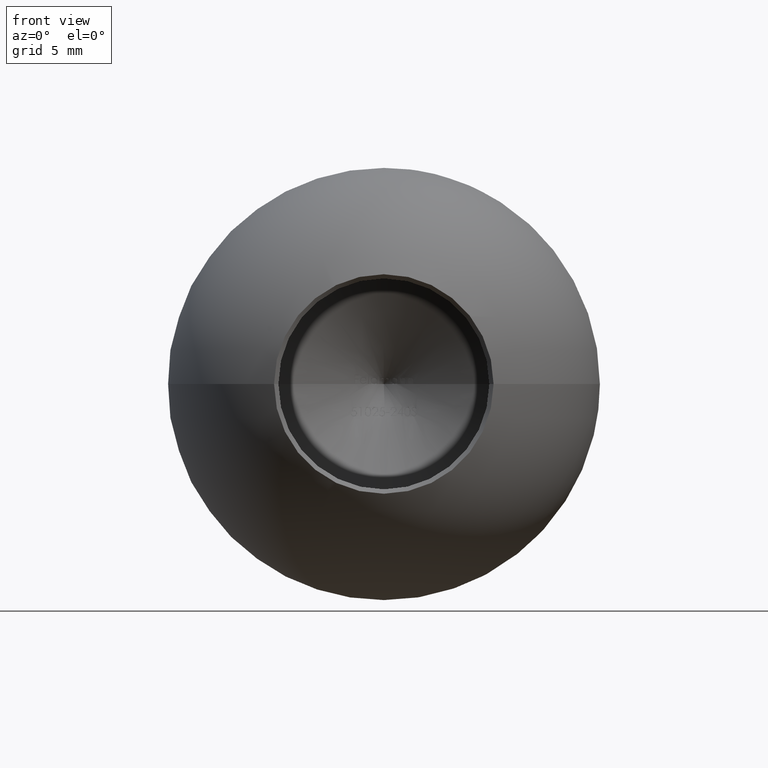
[diagram: clean part render]
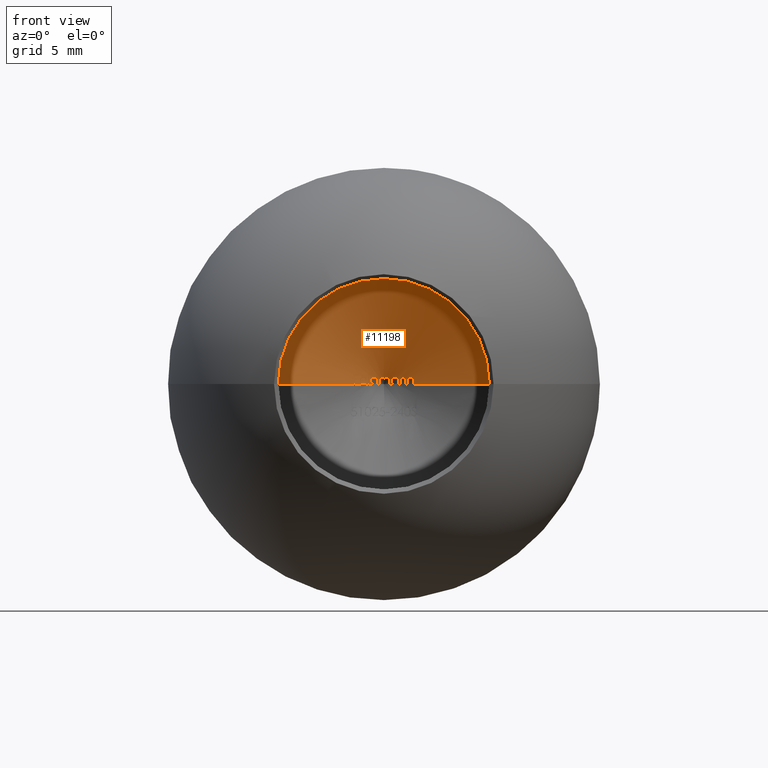
[diagram: same view with one face highlighted and labeled with its STEP entity id]
A machine part, front view. The second image highlights one B-rep face of the part: STEP entity #11198.
In plain terms, the highlighted conical surface has half-angle 59 deg.
Its self-contained STEP definition (entity closure, byte-faithful):
#1 = B_SPLINE_CURVE_WITH_KNOTS ( 'NONE', 3,
 ( #9406, #6652, #11409, #3731, #1846, #10343 ),
 .UNSPECIFIED., .F., .F.,
 ( 4, 2, 4 ),
 ( 0.0000000000000000000, 9.478947945274226800E-005, 0.0001895789589054845400 ),
 .UNSPECIFIED. ) ;
#11 = CARTESIAN_POINT ( 'NONE',  ( -1.339877136752137800, 6.585718645836701400, 0.1831730769230783800 ) ) ;
#38 = CARTESIAN_POINT ( 'NONE',  ( -0.2001335470085484600, 7.171761865918005800, 0.3194928552350442300 ) ) ;
#48 = CARTESIAN_POINT ( 'NONE',  ( -1.322011995031400000, 6.603924338640515800, 0.03412153390940569900 ) ) ;
#59 = EDGE_CURVE ( 'NONE', #5462, #2048, #7190, .T. ) ;
#72 = CARTESIAN_POINT ( 'NONE',  ( -1.665518162393163000, 6.357656490030636000, 0.4748931623931638700 ) ) ;
#91 = CARTESIAN_POINT ( 'NONE',  ( -1.286778537504764200, 6.625111867266441300, 0.009729627450627087100 ) ) ;
#95 = CARTESIAN_POINT ( 'NONE',  ( -1.339089859469132300, 6.587588473182241200, 0.1659570519032325900 ) ) ;
#103 = CARTESIAN_POINT ( 'NONE',  ( -0.3561698717948730800, 7.184277966217322000, 1.500192328955508100E-015 ) ) ;
#110 = CARTESIAN_POINT ( 'NONE',  ( -0.9056891025641035100, 6.854093501049775700, 1.500192328955508100E-015 ) ) ;
#131 = CARTESIAN_POINT ( 'NONE',  ( -1.525415545125976300, 6.438423718284985500, 0.4748931623931638700 ) ) ;
#132 = CARTESIAN_POINT ( 'NONE',  ( 1.278748215002679900, 6.618611074860959700, 0.2216624680569211900 ) ) ;
#133 = CARTESIAN_POINT ( 'NONE',  ( -1.316873170836190900, 6.604692294988399900, 0.1019429019743078200 ) ) ;
#141 = CARTESIAN_POINT ( 'NONE',  ( -0.7632211538461550800, 6.925053253679052100, 0.1944093883547023400 ) ) ;
#161 = B_SPLINE_CURVE_WITH_KNOTS ( 'NONE', 3,
 ( #5937, #3861, #189, #9086, #5105, #2333 ),
 .UNSPECIFIED., .F., .F.,
 ( 4, 2, 4 ),
 ( 0.0000000000000000000, 0.0001050706478123604600, 0.0002101412956247210000 ),
 .UNSPECIFIED. ) ;
#189 = CARTESIAN_POINT ( 'NONE',  ( -0.4974798504800669900, 7.019723047697930000, 0.3866342090348231500 ) ) ;
#218 = CARTESIAN_POINT ( 'NONE',  ( -0.7445456928866451800, 6.946667929197361400, 0.1047826798471500500 ) ) ;
#219 = CARTESIAN_POINT ( 'NONE',  ( 1.726575854700853400, 6.360854979009367600, 1.500192328955508100E-015 ) ) ;
#243 = CARTESIAN_POINT ( 'NONE',  ( 1.387366452991451800, 6.564672550100445900, 1.500192328955508100E-015 ) ) ;
#261 = CARTESIAN_POINT ( 'NONE',  ( -0.6548595648391192200, 7.004807092357610900, 0.01033408935832822100 ) ) ;
#292 = CARTESIAN_POINT ( 'NONE',  ( -1.936584698584708900E-018, 7.398286415862954400, 0.0000000000000000000 ) ) ;
#301 = EDGE_CURVE ( 'NONE', #4851, #7272, #7338, .T. ) ;
#317 = CARTESIAN_POINT ( 'NONE',  ( -0.03522397244553379000, 7.162720029132172400, 0.3907181555876257400 ) ) ;
#340 = CARTESIAN_POINT ( 'NONE',  ( -0.4036591880341893800, 6.991870908226687200, 0.5427350427350441400 ) ) ;
#359 = EDGE_CURVE ( 'NONE', #2409, #3584, #2316, .T. ) ;
#402 = EDGE_CURVE ( 'NONE', #6707, #11407, #5255, .T. ) ;
#419 = CARTESIAN_POINT ( 'NONE',  ( 0.1665018309098093000, 7.142794062606728100, 0.3922337965753890900 ) ) ;
#434 = CARTESIAN_POINT ( 'NONE',  ( -0.9938835470085479700, 6.791043439216088600, 0.1831730769230783800 ) ) ;
#453 = CARTESIAN_POINT ( 'NONE',  ( -1.014236111111112000, 6.785919220991226000, 0.09996077056624080900 ) ) ;
#499 = CARTESIAN_POINT ( 'NONE',  ( -1.135927483978445000, 6.715752324675432500, -8.256864477060550500E-013 ) ) ;
#532 = EDGE_CURVE ( 'NONE', #1014, #5419, #7846, .T. ) ;
#541 = CARTESIAN_POINT ( 'NONE',  ( -0.9056891025641035100, 6.763863504561936900, 0.5427350427350441400 ) ) ;
#546 = ORIENTED_EDGE ( 'NONE', *, *, #5471, .T. ) ;
#560 = CARTESIAN_POINT ( 'NONE',  ( -1.387366452991454000, 6.556703765438391500, 0.1922893295940185700 ) ) ;
#588 = CARTESIAN_POINT ( 'NONE',  ( 0.8310630341878052500, 6.847522460934470700, 0.3866987179487194100 ) ) ;
#597 = CARTESIAN_POINT ( 'NONE',  ( -1.014236111111112000, 6.785919220991226000, 0.09996077056624080900 ) ) ;
#609 = CARTESIAN_POINT ( 'NONE',  ( 1.726575854700853400, 6.354090940015741900, 0.1974834735576937700 ) ) ;
#625 = CARTESIAN_POINT ( 'NONE',  ( -0.7579895014815102300, 6.919163143210921500, 0.2490537826473115400 ) ) ;
#632 = B_SPLINE_CURVE_WITH_KNOTS ( 'NONE', 3,
 ( #12148, #3554, #625, #10198, #4530, #5501, #12226, #5420, #6469, #10351 ),
 .UNSPECIFIED., .F., .F.,
 ( 4, 2, 2, 2, 4 ),
 ( 0.0000000000000000000, 8.155571166221291200E-005, 0.0001631114233244258200, 0.0002446671349866387400, 0.0003262228466488516500 ),
 .UNSPECIFIED. ) ;
#639 = ORIENTED_EDGE ( 'NONE', *, *, #709, .T. ) ;
#666 = ORIENTED_EDGE ( 'NONE', *, *, #7869, .T. ) ;
#709 = EDGE_CURVE ( 'NONE', #1341, #3988, #4331, .T. ) ;
#734 = CARTESIAN_POINT ( 'NONE',  ( -1.035966713408120700, 6.747259404961123900, 0.3173727964743604500 ) ) ;
#736 = CARTESIAN_POINT ( 'NONE',  ( 0.3290331196581181000, 7.163922241602343800, 0.2094618055555570200 ) ) ;
#750 = EDGE_CURVE ( 'NONE', #5419, #5113, #1319, .T. ) ;
#760 = CARTESIAN_POINT ( 'NONE',  ( 0.9870993589743569700, 6.766367003783075000, 0.3635288229497706200 ) ) ;
#761 = VERTEX_POINT ( 'NONE', #5040 ) ;
#801 = VERTEX_POINT ( 'NONE', #8029 ) ;
#805 = CARTESIAN_POINT ( 'NONE',  ( -0.2476228632478647000, 7.122378847666433400, 0.3866987179487192900 ) ) ;
#823 = DIRECTION ( 'NONE',  ( -0.8571673007021136700, -0.5150380749100517100, 1.049727191138620400E-016 ) ) ;
#826 = CARTESIAN_POINT ( 'NONE',  ( -1.936584698584708900E-018, 7.398286415862954400, 0.0000000000000000000 ) ) ;
#834 = B_SPLINE_CURVE_WITH_KNOTS ( 'NONE', 3,
 ( #10588, #131, #4836, #5806 ),
 .UNSPECIFIED., .F., .F.,
 ( 4, 4 ),
 ( 0.0007487562567123391600, 0.0009913007770317636700 ),
 .UNSPECIFIED. ) ;
#957 = CARTESIAN_POINT ( 'NONE',  ( -1.383672564581590600, 6.554662816931302600, 0.2392944843563435400 ) ) ;
#965 = CARTESIAN_POINT ( 'NONE',  ( 0.4681744587720971800, 7.057391238730264000, 0.3204797308144003400 ) ) ;
#967 = CARTESIAN_POINT ( 'NONE',  ( -1.244739828179915600, 6.649847110737218800, 0.04667709270721038400 ) ) ;
#993 = CARTESIAN_POINT ( 'NONE',  ( -0.9938835470085479700, 6.791043439216088600, 0.1831730769230783800 ) ) ;
#996 = EDGE_CURVE ( 'NONE', #1014, #9906, #11989, .T. ) ;
#1001 = CARTESIAN_POINT ( 'NONE',  ( 0.5743681984322206400, 6.981514231364338100, 0.3889075040730031200 ) ) ;
#1013 = CARTESIAN_POINT ( 'NONE',  ( 0.9870993589743569700, 6.775352539716305200, 0.3169487847222237100 ) ) ;
#1014 = VERTEX_POINT ( 'NONE', #11428 ) ;
#1029 = VECTOR ( 'NONE', #9870, 1000.000000000000000 ) ;
#1034 = CARTESIAN_POINT ( 'NONE',  ( -1.713007478632479200, 6.369007681853009500, 1.500192328955508100E-015 ) ) ;
#1038 = EDGE_CURVE ( 'NONE', #6957, #1341, #9929, .T. ) ;
#1043 = CARTESIAN_POINT ( 'NONE',  ( 1.134231436965809700, 6.676925840417423400, 0.3934829059829074700 ) ) ;
#1070 = CARTESIAN_POINT ( 'NONE',  ( -1.455208333333333900, 6.510294168091587800, 0.2577991452991468300 ) ) ;
#1073 = ORIENTED_EDGE ( 'NONE', *, *, #12274, .T. ) ;
#1083 = CARTESIAN_POINT ( 'NONE',  ( -1.219117226891513100, 6.665340063689570500, 0.04165419064811912200 ) ) ;
#1090 = EDGE_CURVE ( 'NONE', #5721, #7342, #6168, .T. ) ;
#1098 = VERTEX_POINT ( 'NONE', #72 ) ;
#1109 = EDGE_CURVE ( 'NONE', #1902, #4851, #5085, .T. ) ;
#1115 = CARTESIAN_POINT ( 'NONE',  ( 0.8152512996039360500, 6.856136274202364200, 0.3866987179487194100 ) ) ;
#1151 = CARTESIAN_POINT ( 'NONE',  ( -0.1464960603632493300, 7.157011405448623800, 0.3738723624465826700 ) ) ;
#1154 = CARTESIAN_POINT ( 'NONE',  ( -0.3879110842113436300, 6.997517941183385700, 0.5427350427350441400 ) ) ;
#1171 = VERTEX_POINT ( 'NONE', #9889 ) ;
#1204 = CARTESIAN_POINT ( 'NONE',  ( 1.717918690679695000, 6.351118546125890800, 0.2943356654103199700 ) ) ;
#1219 = CARTESIAN_POINT ( 'NONE',  ( -0.7625839456207317300, 6.928925671282955900, 0.1708018247460700300 ) ) ;
#1254 = CARTESIAN_POINT ( 'NONE',  ( -0.3720618090708280900, 7.002988262054384600, 0.5427350427350441400 ) ) ;
#1256 = CARTESIAN_POINT ( 'NONE',  ( 1.710145773918358500, 6.353151277308385600, 0.3183697774840302800 ) ) ;
#1274 = EDGE_CURVE ( 'NONE', #7380, #5154, #632, .T. ) ;
#1290 = CARTESIAN_POINT ( 'NONE',  ( 0.1981194911858959500, 7.133580115515504100, 0.3934829059829074700 ) ) ;
#1309 = EDGE_CURVE ( 'NONE', #9395, #8101, #9000, .T. ) ;
#1319 = B_SPLINE_CURVE_WITH_KNOTS ( 'NONE', 3,
 ( #6891, #6934, #8798, #3058 ),
 .UNSPECIFIED., .F., .F.,
 ( 4, 4 ),
 ( 0.001806058992281601200, 0.002102759371083254000 ),
 .UNSPECIFIED. ) ;
#1320 = CARTESIAN_POINT ( 'NONE',  ( 1.005612657392077200, 6.760504594219315600, 0.3401211589749970600 ) ) ;
#1325 = CARTESIAN_POINT ( 'NONE',  ( 0.05628756009615237100, 7.214827138706767500, 0.3000943175747878300 ) ) ;
#1341 = VERTEX_POINT ( 'NONE', #12340 ) ;
#1397 = EDGE_CURVE ( 'NONE', #2486, #1703, #10106, .T. ) ;
#1441 = CIRCLE ( 'NONE', #2397, 6.100000000000001400 ) ;
#1482 = CARTESIAN_POINT ( 'NONE',  ( -0.3561698717948730800, 7.184277966217329900, 0.09575507470551500300 ) ) ;
#1484 = CARTESIAN_POINT ( 'NONE',  ( 0.8310630341880327300, 6.879416679111294300, 0.2608765231388721600 ) ) ;
#1489 = CARTESIAN_POINT ( 'NONE',  ( 1.726575854700853400, 6.358568016074636700, 0.1319145520317594500 ) ) ;
#1519 = B_SPLINE_CURVE_WITH_KNOTS ( 'NONE', 3,
 ( #6329, #7296, #9438, #10305 ),
 .UNSPECIFIED., .F., .F.,
 ( 4, 4 ),
 ( 0.001608667936522824200, 0.001994531731372896200 ),
 .UNSPECIFIED. ) ;
#1538 = CARTESIAN_POINT ( 'NONE',  ( 1.434855769230768000, 6.509012168130794000, 0.3634494040485558600 ) ) ;
#1546 = EDGE_CURVE ( 'NONE', #2142, #1171, #4889, .T. ) ;
#1606 = CARTESIAN_POINT ( 'NONE',  ( -1.595458700704719000, 6.421502265953668200, 0.3120726495726510700 ) ) ;
#1625 = EDGE_CURVE ( 'NONE', #2941, #8684, #8604, .T. ) ;
#1661 = EDGE_CURVE ( 'NONE', #2142, #8082, #10693, .T. ) ;
#1703 = VERTEX_POINT ( 'NONE', #8807 ) ;
#1742 = EDGE_CURVE ( 'NONE', #12085, #1098, #834, .T. ) ;
#1789 = ORIENTED_EDGE ( 'NONE', *, *, #12021, .T. ) ;
#1790 = VECTOR ( 'NONE', #4992, 1000.000000000000000 ) ;
#1846 = CARTESIAN_POINT ( 'NONE',  ( -1.073752915113377300, 6.750728639161263100, 0.09637610866972561000 ) ) ;
#1861 = CARTESIAN_POINT ( 'NONE',  ( -0.5601195245726509100, 6.986987478013986700, 0.3934829059829074700 ) ) ;
#1867 = EDGE_CURVE ( 'NONE', #7572, #2048, #8322, .T. ) ;
#1891 = B_SPLINE_CURVE_WITH_KNOTS ( 'NONE', 3,
 ( #10040, #9195, #6180, #597 ),
 .UNSPECIFIED., .F., .F.,
 ( 4, 4 ),
 ( 2.589674448291843100E-007, 5.484452315193692400E-005 ),
 .UNSPECIFIED. ) ;
#1902 = VERTEX_POINT ( 'NONE', #541 ) ;
#1922 = CARTESIAN_POINT ( 'NONE',  ( -1.342845219017095000, 6.568634786242006900, 0.3214009081196596000 ) ) ;
#1932 = CARTESIAN_POINT ( 'NONE',  ( 0.4299054499318520400, 7.099276709664892800, 0.2510754663132674400 ) ) ;
#1933 = CARTESIAN_POINT ( 'NONE',  ( -1.229109325351599200, 6.659298245000090200, 0.04361298208248165500 ) ) ;
#1959 = ORIENTED_EDGE ( 'NONE', *, *, #6871, .T. ) ;
#1966 = ORIENTED_EDGE ( 'NONE', *, *, #10131, .T. ) ;
#1973 = CARTESIAN_POINT ( 'NONE',  ( -1.455208333333333900, 6.475153099272774600, 0.4929926354261307000 ) ) ;
#1976 = VERTEX_POINT ( 'NONE', #5494 ) ;
#2003 = CARTESIAN_POINT ( 'NONE',  ( 0.08779943702463703600, 7.182566655175205200, 0.3485925733421035300 ) ) ;
#2007 = B_SPLINE_CURVE_WITH_KNOTS ( 'NONE', 3,
 ( #9373, #2770, #1115, #7107 ),
 .UNSPECIFIED., .F., .F.,
 ( 4, 4 ),
 ( 0.0004564707604004478500, 0.0005104524866794638700 ),
 .UNSPECIFIED. ) ;
#2016 = CARTESIAN_POINT ( 'NONE',  ( -1.191685029380342900, 6.644226206773288900, 0.3934829059829074700 ) ) ;
#2038 = CARTESIAN_POINT ( 'NONE',  ( -0.8740519313173519300, 6.780113162964460600, 0.5427350427350441400 ) ) ;
#2048 = VERTEX_POINT ( 'NONE', #8965 ) ;
#2051 = EDGE_CURVE ( 'NONE', #7243, #7508, #9079, .T. ) ;
#2057 = B_SPLINE_CURVE_WITH_KNOTS ( 'NONE', 3,
 ( #11, #95, #3989, #10714, #3024, #133, #10548, #6730, #9571, #6860, #3853, #967, #1933, #1083, #8601, #8640 ),
 .UNSPECIFIED., .F., .F.,
 ( 4, 3, 3, 3, 3, 4 ),
 ( 0.0000000000000000000, 5.200546313376849900E-005, 0.0001044816825349840900, 0.0001518414543448104400, 0.0002073250983754808700, 0.0002424756323301273900 ),
 .UNSPECIFIED. ) ;
#2058 = CARTESIAN_POINT ( 'NONE',  ( -1.455208333333333900, 6.471606403678408400, 0.5110837011094711000 ) ) ;
#2083 = VERTEX_POINT ( 'NONE', #2564 ) ;
#2091 = ORIENTED_EDGE ( 'NONE', *, *, #3047, .T. ) ;
#2107 = ORIENTED_EDGE ( 'NONE', *, *, #402, .T. ) ;
#2141 = CARTESIAN_POINT ( 'NONE',  ( 1.176492429003841400, 6.653669747060445300, 0.3896581515268290300 ) ) ;
#2142 = VERTEX_POINT ( 'NONE', #3635 ) ;
#2144 = CARTESIAN_POINT ( 'NONE',  ( -0.7596531396830434900, 6.933449874742991300, 0.1476746256332041300 ) ) ;
#2169 = CARTESIAN_POINT ( 'NONE',  ( -0.2476228632478647000, 7.249499588966466800, 1.500192328955508100E-015 ) ) ;
#2197 = CARTESIAN_POINT ( 'NONE',  ( 0.9870993589743569700, 6.761288842363845800, 0.3866987179487194100 ) ) ;
#2225 = EDGE_CURVE ( 'NONE', #7342, #4173, #10009, .T. ) ;
#2285 = ORIENTED_EDGE ( 'NONE', *, *, #1038, .T. ) ;
#2287 = CARTESIAN_POINT ( 'NONE',  ( -0.05112407260770863300, 7.160365999415348300, 0.3929516778922428300 ) ) ;
#2316 = B_SPLINE_CURVE_WITH_KNOTS ( 'NONE', 3,
 ( #609, #1489, #3372, #10184 ),
 .UNSPECIFIED., .F., .F.,
 ( 4, 4 ),
 ( 0.001118325528164309500, 0.001313442525816564700 ),
 .UNSPECIFIED. ) ;
#2333 = CARTESIAN_POINT ( 'NONE',  ( -0.4036591880341893800, 7.091789892953755700, 0.3118606436965827300 ) ) ;
#2345 = VECTOR ( 'NONE', #11433, 1000.000000000000000 ) ;
#2369 = ORIENTED_EDGE ( 'NONE', *, *, #6393, .T. ) ;
#2374 = VERTEX_POINT ( 'NONE', #11850 ) ;
#2397 = AXIS2_PLACEMENT_3D ( 'NONE', #8650, #2922, #4888 ) ;
#2409 = VERTEX_POINT ( 'NONE', #11981 ) ;
#2460 = CARTESIAN_POINT ( 'NONE',  ( 0.8310630341880327300, 6.898933366689814100, 1.500192328955508100E-015 ) ) ;
#2486 = VERTEX_POINT ( 'NONE', #11141 ) ;
#2488 = EDGE_CURVE ( 'NONE', #2556, #7272, #4307, .T. ) ;
#2556 = VERTEX_POINT ( 'NONE', #10749 ) ;
#2558 = CARTESIAN_POINT ( 'NONE',  ( -1.055599559354143800, 6.731720509021737800, 0.3415754201716722500 ) ) ;
#2564 = CARTESIAN_POINT ( 'NONE',  ( -1.665518162393163000, 6.385624808247485800, 0.2577991452991468300 ) ) ;
#2587 = CARTESIAN_POINT ( 'NONE',  ( 0.9870993589743569700, 6.771076181808828300, 0.3402285942473590700 ) ) ;
#2593 = ORIENTED_EDGE ( 'NONE', *, *, #6580, .T. ) ;
#2649 = EDGE_CURVE ( 'NONE', #2374, #2688, #6479, .T. ) ;
#2661 = CARTESIAN_POINT ( 'NONE',  ( 1.581987847222220900, 6.418770381382526800, 0.3934829059829074700 ) ) ;
#2664 = EDGE_CURVE ( 'NONE', #11367, #9514, #4764, .T. ) ;
#2669 = CARTESIAN_POINT ( 'NONE',  ( -1.455208333333333900, 6.508398707406576600, 0.2758831662008839900 ) ) ;
#2688 = VERTEX_POINT ( 'NONE', #6647 ) ;
#2707 = CARTESIAN_POINT ( 'NONE',  ( -1.103179421032288100, 6.726373669342845800, 0.1831730769230783800 ) ) ;
#2721 = CARTESIAN_POINT ( 'NONE',  ( -0.2001335470085484600, 7.171761865918005800, 0.3194928552350442300 ) ) ;
#2729 = EDGE_CURVE ( 'NONE', #2556, #7380, #11104, .T. ) ;
#2730 = CARTESIAN_POINT ( 'NONE',  ( -0.2318877890185883100, 7.127477359191492400, 0.3866987179487194100 ) ) ;
#2747 = CARTESIAN_POINT ( 'NONE',  ( 0.5269113906325531000, 7.011481597319899200, 0.3698808421072865600 ) ) ;
#2770 = CARTESIAN_POINT ( 'NONE',  ( 0.7994224558616833700, 6.864715769115967700, 0.3866987179487194100 ) ) ;
#2799 = ORIENTED_EDGE ( 'NONE', *, *, #1274, .T. ) ;
#2830 = ORIENTED_EDGE ( 'NONE', *, *, #5395, .F. ) ;
#2855 = CARTESIAN_POINT ( 'NONE',  ( -1.578785132513775600, 6.437110171568797900, 0.2577991452991468300 ) ) ;
#2866 = VECTOR ( 'NONE', #10243, 1000.000000000000000 ) ;
#2870 = CARTESIAN_POINT ( 'NONE',  ( 0.9554523394504650400, 6.778965901043911800, 0.3866987179487194100 ) ) ;
#2882 = VERTEX_POINT ( 'NONE', #7091 ) ;
#2892 = CARTESIAN_POINT ( 'NONE',  ( -6.100000000000001400, 3.733036639794860000, 7.470345474798856300E-016 ) ) ;
#2922 = DIRECTION ( 'NONE',  ( -3.795949471969979100E-019, -1.000000000000000000, -0.0000000000000000000 ) ) ;
#2932 = CARTESIAN_POINT ( 'NONE',  ( -0.2476228632478647000, 7.153337261164004700, 0.3255169396350683400 ) ) ;
#2941 = VERTEX_POINT ( 'NONE', #1325 ) ;
#2945 = CARTESIAN_POINT ( 'NONE',  ( -1.356485598362129600, 6.563225679577753300, 0.3030847161020858700 ) ) ;
#2968 = B_SPLINE_CURVE_WITH_KNOTS ( 'NONE', 3,
 ( #8989, #1320, #8045, #10806, #3248, #9970 ),
 .UNSPECIFIED., .F., .F.,
 ( 4, 2, 4 ),
 ( 0.0000000000000000000, 9.862340729945773200E-005, 0.0001972468145989154600 ),
 .UNSPECIFIED. ) ;
#2975 = CARTESIAN_POINT ( 'NONE',  ( -1.713007478632479200, 6.369007681853009500, 0.1764582975970517300 ) ) ;
#2976 = CARTESIAN_POINT ( 'NONE',  ( -1.368528184240388200, 6.558703418570108700, 0.2830268074333313100 ) ) ;
#3020 = CARTESIAN_POINT ( 'NONE',  ( -1.383794421931995300, 6.562239438052860600, 0.1468272505587847100 ) ) ;
#3021 = DIRECTION ( 'NONE',  ( 0.8571673007021136700, -0.5150380749100517100, 0.0000000000000000000 ) ) ;
#3024 = CARTESIAN_POINT ( 'NONE',  ( -1.325523987704854100, 6.598803908221692700, 0.1166909536807704100 ) ) ;
#3047 = EDGE_CURVE ( 'NONE', #8101, #12360, #9606, .T. ) ;
#3053 = CARTESIAN_POINT ( 'NONE',  ( -0.1721437568219758000, 7.162082807791110300, 0.3534654816710283100 ) ) ;
#3058 = CARTESIAN_POINT ( 'NONE',  ( -1.455208333333333900, 6.467893248463349600, 0.5291666666666681200 ) ) ;
#3108 = ORIENTED_EDGE ( 'NONE', *, *, #10687, .T. ) ;
#3146 = EDGE_CURVE ( 'NONE', #4173, #6894, #12259, .T. ) ;
#3150 = CONICAL_SURFACE ( 'NONE', #4010, 1664.279482350529000, 1.029744258676657400 ) ;
#3159 = CARTESIAN_POINT ( 'NONE',  ( -1.936584698584708900E-018, 7.398286415862954400, 0.0000000000000000000 ) ) ;
#3160 = CARTESIAN_POINT ( 'NONE',  ( -0.8581997863247873300, 6.873232542477667000, 0.1857959893372500600 ) ) ;
#3172 = CARTESIAN_POINT ( 'NONE',  ( -1.665518162393163000, 6.397542141805766700, 0.08578117235620366700 ) ) ;
#3194 = VERTEX_POINT ( 'NONE', #6971 ) ;
#3201 = ORIENTED_EDGE ( 'NONE', *, *, #12160, .T. ) ;
#3211 = CARTESIAN_POINT ( 'NONE',  ( 0.007412038615006793000, 7.174606276090383300, 0.3723769714719757900 ) ) ;
#3248 = CARTESIAN_POINT ( 'NONE',  ( 1.105319173278442400, 6.693522394811275900, 0.3925490969725742900 ) ) ;
#3251 = ORIENTED_EDGE ( 'NONE', *, *, #11441, .T. ) ;
#3292 = CARTESIAN_POINT ( 'NONE',  ( 0.02892610088501207000, 7.185161961475510700, 0.3536798658705478900 ) ) ;
#3297 = ORIENTED_EDGE ( 'NONE', *, *, #8036, .T. ) ;
#3372 = CARTESIAN_POINT ( 'NONE',  ( 1.726575854700853400, 6.360854979009370200, 0.06571722180493001800 ) ) ;
#3416 = CARTESIAN_POINT ( 'NONE',  ( -1.525361381278820900, 6.462813718242589500, 0.3120726495726510700 ) ) ;
#3465 = DIRECTION ( 'NONE',  ( -0.8571673007021136700, -0.5150380749100517100, 1.049727191138620400E-016 ) ) ;
#3487 = CARTESIAN_POINT ( 'NONE',  ( -1.936584698584708900E-018, 7.398286415862954400, 0.0000000000000000000 ) ) ;
#3554 = CARTESIAN_POINT ( 'NONE',  ( -0.7624552855048846200, 6.921467237951234500, 0.2215941953324588000 ) ) ;
#3584 = VERTEX_POINT ( 'NONE', #219 ) ;
#3586 = CARTESIAN_POINT ( 'NONE',  ( -1.161648106492325900, 6.661509491039447000, 0.3927113657888046700 ) ) ;
#3588 = EDGE_CURVE ( 'NONE', #5632, #2083, #9300, .T. ) ;
#3602 = CARTESIAN_POINT ( 'NONE',  ( -0.06678185096153996200, 7.158477069081816200, 0.3934829059829075300 ) ) ;
#3635 = CARTESIAN_POINT ( 'NONE',  ( -1.249353555073600400, 6.647599065377159300, 2.604015654991564000E-012 ) ) ;
#3680 = CARTESIAN_POINT ( 'NONE',  ( 0.3282098184729218500, 7.134439204445004500, 0.2946327035781492500 ) ) ;
#3681 = CARTESIAN_POINT ( 'NONE',  ( -0.2476228632478647000, 7.122378847666433400, 0.3866987179487192900 ) ) ;
#3695 = CARTESIAN_POINT ( 'NONE',  ( -0.9056891025641035100, 6.854093501049775700, 1.500192328955508100E-015 ) ) ;
#3731 = CARTESIAN_POINT ( 'NONE',  ( -1.093929285720573400, 6.739587156042614600, 0.07284698006150415500 ) ) ;
#3737 = ORIENTED_EDGE ( 'NONE', *, *, #5688, .T. ) ;
#3775 = CARTESIAN_POINT ( 'NONE',  ( 0.4240117521367507400, 7.118011519035854400, 0.1944093883547023400 ) ) ;
#3780 = ORIENTED_EDGE ( 'NONE', *, *, #1090, .T. ) ;
#3804 = CARTESIAN_POINT ( 'NONE',  ( -1.657191368757002100, 6.390569170830794100, 0.2577991452991468300 ) ) ;
#3833 = CARTESIAN_POINT ( 'NONE',  ( -0.2476228632478647600, 7.249499588966467700, 0.06868726101121315500 ) ) ;
#3845 = CARTESIAN_POINT ( 'NONE',  ( -1.386734801842283600, 6.555146559859611700, 0.2157239969728518800 ) ) ;
#3848 = EDGE_CURVE ( 'NONE', #3988, #9609, #10090, .T. ) ;
#3853 = CARTESIAN_POINT ( 'NONE',  ( -1.260190480245050500, 6.640445045714501200, 0.05255317615724616800 ) ) ;
#3861 = CARTESIAN_POINT ( 'NONE',  ( -0.5284715406823503600, 7.002870024305243700, 0.3925497902794605200 ) ) ;
#3919 = CARTESIAN_POINT ( 'NONE',  ( 1.278819444444442300, 6.626786102670442000, 0.1320532150023189800 ) ) ;
#3941 = VERTEX_POINT ( 'NONE', #9158 ) ;
#3974 = CARTESIAN_POINT ( 'NONE',  ( -0.8581997863247872200, 6.788163359488390100, 0.5427350427350441400 ) ) ;
#3977 = CARTESIAN_POINT ( 'NONE',  ( -1.455208333333333900, 6.504028838429932500, 0.3120726495726510700 ) ) ;
#3988 = VERTEX_POINT ( 'NONE', #6366 ) ;
#3989 = CARTESIAN_POINT ( 'NONE',  ( -1.336835441720505500, 6.590147823789926900, 0.1484644909602609000 ) ) ;
#4010 = AXIS2_PLACEMENT_3D ( 'NONE', #9358, #8550, #9478 ) ;
#4056 = CARTESIAN_POINT ( 'NONE',  ( 1.434855769230768000, 6.515354987454635700, 0.3169487847222237100 ) ) ;
#4079 = ORIENTED_EDGE ( 'NONE', *, *, #9833, .T. ) ;
#4119 = B_SPLINE_CURVE_WITH_KNOTS ( 'NONE', 3,
 ( #9877, #2287, #317, #7999, #8084, #3211, #9040, #3292, #10899, #5150, #11869, #8995, #10014 ),
 .UNSPECIFIED., .F., .F.,
 ( 4, 3, 3, 3, 4 ),
 ( 2.710505431213760800E-020, 4.734074943009043100E-005, 9.491457183016142100E-005, 0.0001384496987312392200, 0.0001759050593100017200 ),
 .UNSPECIFIED. ) ;
#4162 = EDGE_CURVE ( 'NONE', #1976, #9906, #1441, .T. ) ;
#4173 = VERTEX_POINT ( 'NONE', #8053 ) ;
#4307 = LINE ( 'NONE', #10032, #9844 ) ;
#4331 = B_SPLINE_CURVE_WITH_KNOTS ( 'NONE', 3,
 ( #340, #1154, #1254, #8934 ),
 .UNSPECIFIED., .F., .F.,
 ( 4, 4 ),
 ( 0.0006826558321638531300, 0.0007326498567803563400 ),
 .UNSPECIFIED. ) ;
#4352 = CARTESIAN_POINT ( 'NONE',  ( -1.014236111111112000, 6.785919220991226000, 0.09996077056624080900 ) ) ;
#4381 = B_SPLINE_CURVE_WITH_KNOTS ( 'NONE', 3,
 ( #12044, #1484, #8204, #2460 ),
 .UNSPECIFIED., .F., .F.,
 ( 4, 4 ),
 ( 0.0005452350340492928200, 0.0009339344085728830800 ),
 .UNSPECIFIED. ) ;
#4383 = CARTESIAN_POINT ( 'NONE',  ( -0.3561698717948730800, 7.184277966217322000, 1.500192328955508100E-015 ) ) ;
#4384 = ORIENTED_EDGE ( 'NONE', *, *, #7751, .T. ) ;
#4391 = CARTESIAN_POINT ( 'NONE',  ( -1.455208333333333900, 6.504028838429932500, 0.3120726495726510700 ) ) ;
#4425 = EDGE_CURVE ( 'NONE', #8428, #10525, #2057, .T. ) ;
#4437 = CARTESIAN_POINT ( 'NONE',  ( 1.525397585370738400, 6.452656563358773100, 0.3873334647179064200 ) ) ;
#4439 = ORIENTED_EDGE ( 'NONE', *, *, #5534, .T. ) ;
#4470 = EDGE_CURVE ( 'NONE', #5113, #12085, #7609, .T. ) ;
#4474 = VERTEX_POINT ( 'NONE', #9658 ) ;
#4530 = CARTESIAN_POINT ( 'NONE',  ( -0.7189649266904827300, 6.925475782084689900, 0.3207850584851978900 ) ) ;
#4541 = CARTESIAN_POINT ( 'NONE',  ( 0.3290331196581181000, 7.200583371904609300, 1.500192328955508100E-015 ) ) ;
#4563 = CARTESIAN_POINT ( 'NONE',  ( -1.279202454977953900, 6.621839696408458500, 0.1831730769230783800 ) ) ;
#4624 = VECTOR ( 'NONE', #11454, 1000.000000000000000 ) ;
#4625 = CARTESIAN_POINT ( 'NONE',  ( 0.3290331196581181000, 7.163922241602343800, 0.2094618055555570200 ) ) ;
#4679 = CARTESIAN_POINT ( 'NONE',  ( 0.7835737179487165500, 6.890815161391957500, 0.3151467347756424800 ) ) ;
#4700 = CARTESIAN_POINT ( 'NONE',  ( -0.2001335470085484600, 7.136660541596352700, 0.3866987179487194100 ) ) ;
#4716 = CARTESIAN_POINT ( 'NONE',  ( 0.6560317198127459900, 6.938981529873174700, 0.3926894086346132700 ) ) ;
#4745 = B_SPLINE_CURVE_WITH_KNOTS ( 'NONE', 3,
 ( #7551, #5541, #11389, #10286 ),
 .UNSPECIFIED., .F., .F.,
 ( 4, 4 ),
 ( 0.0005673951418425760400, 0.0009529963157706389200 ),
 .UNSPECIFIED. ) ;
#4761 = EDGE_CURVE ( 'NONE', #6894, #2486, #4838, .T. ) ;
#4764 = B_SPLINE_CURVE_WITH_KNOTS ( 'NONE', 3,
 ( #4770, #3919, #8829, #11928 ),
 .UNSPECIFIED., .F., .F.,
 ( 4, 4 ),
 ( 0.0008173429544300354200, 0.001012761761067025000 ),
 .UNSPECIFIED. ) ;
#4770 = CARTESIAN_POINT ( 'NONE',  ( 1.278819444444442300, 6.620786033399514100, 0.1974834735576937700 ) ) ;
#4786 = CARTESIAN_POINT ( 'NONE',  ( -1.713007478632479200, 6.321016553848423300, 0.5291666666673796600 ) ) ;
#4787 = CARTESIAN_POINT ( 'NONE',  ( -1.342845219017095000, 6.568634786242006900, 0.3214009081196596000 ) ) ;
#4818 = ORIENTED_EDGE ( 'NONE', *, *, #1109, .T. ) ;
#4819 = CARTESIAN_POINT ( 'NONE',  ( -0.2476228632478647000, 7.231341482498939900, 0.1355310367992623400 ) ) ;
#4824 = CARTESIAN_POINT ( 'NONE',  ( -1.665518162393163000, 6.385624808247485800, 0.2577991452991468300 ) ) ;
#4836 = CARTESIAN_POINT ( 'NONE',  ( -1.595507314055754700, 6.398110901176241100, 0.4748931623931638700 ) ) ;
#4838 = B_SPLINE_CURVE_WITH_KNOTS ( 'NONE', 3,
 ( #38, #8710, #4865, #4989, #3053, #10738, #9718, #5796, #6763, #1151 ),
 .UNSPECIFIED., .F., .F.,
 ( 4, 3, 3, 4 ),
 ( 0.0000000000000000000, 3.851311768730969500E-005, 5.820392503490908900E-005, 7.820939082748017000E-005 ),
 .UNSPECIFIED. ) ;
#4843 = LINE ( 'NONE', #6821, #6378 ) ;
#4851 = VERTEX_POINT ( 'NONE', #3974 ) ;
#4865 = CARTESIAN_POINT ( 'NONE',  ( -0.1852163995978129100, 7.165944379449486600, 0.3396441387977310300 ) ) ;
#4888 = DIRECTION ( 'NONE',  ( 1.000000000000000000, 0.0000000000000000000, 0.0000000000000000000 ) ) ;
#4889 = LINE ( 'NONE', #826, #2345 ) ;
#4911 = CARTESIAN_POINT ( 'NONE',  ( -1.386712833582677900, 6.558973090025499900, 0.1694951814833218800 ) ) ;
#4914 = CARTESIAN_POINT ( 'NONE',  ( -0.7632211538461550800, 6.925053253679052100, 0.1944093883547023400 ) ) ;
#4950 = VERTEX_POINT ( 'NONE', #5121 ) ;
#4957 = CARTESIAN_POINT ( 'NONE',  ( 1.277971374902703100, 6.616466821485333000, 0.2457841501025708200 ) ) ;
#4958 = CARTESIAN_POINT ( 'NONE',  ( -1.455208333333333900, 6.467893248463349600, 0.5291666666666681200 ) ) ;
#4984 = CARTESIAN_POINT ( 'NONE',  ( 0.05628756009615237100, 7.214827138706767500, 0.3000943175747878300 ) ) ;
#4989 = CARTESIAN_POINT ( 'NONE',  ( -0.1765711993143913300, 7.163390644832247700, 0.3487844694389349300 ) ) ;
#4992 = DIRECTION ( 'NONE',  ( 0.8571673007021136700, -0.5150380749100517100, 0.0000000000000000000 ) ) ;
#5008 = CARTESIAN_POINT ( 'NONE',  ( -0.7330956097721602600, 6.954925715677783100, 0.08527395509170515600 ) ) ;
#5027 = ORIENTED_EDGE ( 'NONE', *, *, #532, .T. ) ;
#5040 = CARTESIAN_POINT ( 'NONE',  ( 0.9396100427350405600, 6.787768581146925100, 0.3866987179487194100 ) ) ;
#5048 = B_SPLINE_CURVE_WITH_KNOTS ( 'NONE', 3,
 ( #7613, #2870, #10506, #8526 ),
 .UNSPECIFIED., .F., .F.,
 ( 4, 4 ),
 ( 0.0005384015924525534700, 0.0005927561825343558500 ),
 .UNSPECIFIED. ) ;
#5051 = CARTESIAN_POINT ( 'NONE',  ( 1.278819444444442300, 6.620786033399514100, 0.1974834735576937700 ) ) ;
#5085 = B_SPLINE_CURVE_WITH_KNOTS ( 'NONE', 3,
 ( #5863, #9676, #2038, #8749 ),
 .UNSPECIFIED., .F., .F.,
 ( 4, 4 ),
 ( 0.001146643008344522000, 0.001199971740763549000 ),
 .UNSPECIFIED. ) ;
#5105 = CARTESIAN_POINT ( 'NONE',  ( -0.4225331317246421900, 7.073903860085732900, 0.3361200866071060200 ) ) ;
#5113 = VERTEX_POINT ( 'NONE', #11579 ) ;
#5121 = CARTESIAN_POINT ( 'NONE',  ( -1.056425280448718900, 6.759295360287147500, 0.1221153846153861000 ) ) ;
#5150 = CARTESIAN_POINT ( 'NONE',  ( 0.04309207885259126000, 7.197662408796749600, 0.3311020319034371200 ) ) ;
#5154 = VERTEX_POINT ( 'NONE', #1861 ) ;
#5197 = ORIENTED_EDGE ( 'NONE', *, *, #10481, .T. ) ;
#5217 = CARTESIAN_POINT ( 'NONE',  ( -1.035966713408120700, 6.747259404961123900, 0.3173727964743604500 ) ) ;
#5221 = CARTESIAN_POINT ( 'NONE',  ( -0.3561698717948730800, 7.008227294228140300, 0.5427350427350441400 ) ) ;
#5255 = B_SPLINE_CURVE_WITH_KNOTS ( 'NONE', 3,
 ( #9165, #1606, #3416, #4391 ),
 .UNSPECIFIED., .F., .F.,
 ( 4, 4 ),
 ( 0.001768488547498018200, 0.002012582604579745400 ),
 .UNSPECIFIED. ) ;
#5275 = CARTESIAN_POINT ( 'NONE',  ( -0.8581997863247872200, 6.788163359488390100, 0.5427350427350441400 ) ) ;
#5287 = CARTESIAN_POINT ( 'NONE',  ( -1.045332374279296200, 6.769505518713598000, 0.05182582435818695900 ) ) ;
#5394 = ORIENTED_EDGE ( 'NONE', *, *, #4470, .T. ) ;
#5395 = EDGE_CURVE ( 'NONE', #5721, #9609, #11205, .T. ) ;
#5419 = VERTEX_POINT ( 'NONE', #8262 ) ;
#5420 = CARTESIAN_POINT ( 'NONE',  ( -0.6096454098510553100, 6.963690357535659500, 0.3897251748211869600 ) ) ;
#5462 = VERTEX_POINT ( 'NONE', #3695 ) ;
#5471 = EDGE_CURVE ( 'NONE', #10525, #4950, #1, .T. ) ;
#5494 = CARTESIAN_POINT ( 'NONE',  ( 6.100000000000001400, 3.733036639794860000, 0.0000000000000000000 ) ) ;
#5501 = CARTESIAN_POINT ( 'NONE',  ( -0.6799325453821178900, 6.937044884145263000, 0.3571753214606005500 ) ) ;
#5527 = CARTESIAN_POINT ( 'NONE',  ( 0.7404582119147455900, 6.903055662955305900, 0.3628013175215683600 ) ) ;
#5534 = EDGE_CURVE ( 'NONE', #12360, #8428, #10256, .T. ) ;
#5537 = CARTESIAN_POINT ( 'NONE',  ( 1.278819444444442300, 6.629894172849591700, 1.500192328955508100E-015 ) ) ;
#5541 = CARTESIAN_POINT ( 'NONE',  ( 1.387366452991451800, 6.564672550100468100, 0.1289024909808628400 ) ) ;
#5558 = ORIENTED_EDGE ( 'NONE', *, *, #5568, .T. ) ;
#5568 = EDGE_CURVE ( 'NONE', #7862, #9395, #6868, .T. ) ;
#5603 = CARTESIAN_POINT ( 'NONE',  ( -1.339877136752137800, 6.585718645836701400, 0.1831730769230783800 ) ) ;
#5632 = VERTEX_POINT ( 'NONE', #6010 ) ;
#5664 = CARTESIAN_POINT ( 'NONE',  ( 0.2195271746538751700, 7.128223213144956100, 0.3926857945464082300 ) ) ;
#5673 = CARTESIAN_POINT ( 'NONE',  ( -1.665518162393163000, 6.357656490030636000, 0.4748931623931638700 ) ) ;
#5681 = CARTESIAN_POINT ( 'NONE',  ( -1.455208333333333900, 6.506309063117123900, 0.2939743787741444000 ) ) ;
#5688 = EDGE_CURVE ( 'NONE', #7508, #9411, #2007, .T. ) ;
#5712 = ORIENTED_EDGE ( 'NONE', *, *, #4761, .T. ) ;
#5721 = VERTEX_POINT ( 'NONE', #2169 ) ;
#5722 = LINE ( 'NONE', #9259, #2866 ) ;
#5761 = CARTESIAN_POINT ( 'NONE',  ( -1.665518162393163000, 6.380126352693769000, 0.3120726495726510700 ) ) ;
#5796 = CARTESIAN_POINT ( 'NONE',  ( -0.1574265256352358800, 7.158730910453081200, 0.3663451991440767600 ) ) ;
#5806 = CARTESIAN_POINT ( 'NONE',  ( -1.665518162393163000, 6.357656490030636000, 0.4748931623931638700 ) ) ;
#5863 = CARTESIAN_POINT ( 'NONE',  ( -0.9056891025641035100, 6.763863504561936900, 0.5427350427350441400 ) ) ;
#5882 = CARTESIAN_POINT ( 'NONE',  ( 1.270315914121943100, 6.615005313724701400, 0.2936901107530255400 ) ) ;
#5928 = EDGE_CURVE ( 'NONE', #2882, #801, #11199, .T. ) ;
#5937 = CARTESIAN_POINT ( 'NONE',  ( -0.5601195245726509100, 6.986987478013986700, 0.3934829059829074700 ) ) ;
#6010 = CARTESIAN_POINT ( 'NONE',  ( -1.455208333333333900, 6.510294168091587800, 0.2577991452991468300 ) ) ;
#6045 = CARTESIAN_POINT ( 'NONE',  ( 1.726504110921088400, 6.352470894638340600, 0.2218370612504827800 ) ) ;
#6075 = EDGE_CURVE ( 'NONE', #5154, #6957, #161, .T. ) ;
#6149 = ORIENTED_EDGE ( 'NONE', *, *, #1742, .T. ) ;
#6168 = B_SPLINE_CURVE_WITH_KNOTS ( 'NONE', 3,
 ( #11667, #3833, #4819, #8704, #2932, #9636 ),
 .UNSPECIFIED., .F., .F.,
 ( 4, 2, 4 ),
 ( 0.0009231849677901549400, 0.001127532649196601300, 0.001331880330603047700 ),
 .UNSPECIFIED. ) ;
#6180 = CARTESIAN_POINT ( 'NONE',  ( -1.028310549493973000, 6.777067649863662200, 0.1073516188627683500 ) ) ;
#6183 = CARTESIAN_POINT ( 'NONE',  ( -1.035966713408120700, 6.747259404961123900, 0.3173727964743604500 ) ) ;
#6184 = CARTESIAN_POINT ( 'NONE',  ( -0.3561698717948730300, 7.159323541986805300, 0.1904941574243524400 ) ) ;
#6194 = CARTESIAN_POINT ( 'NONE',  ( -0.8581997863247873300, 6.839855645288064800, 0.3669964021875561400 ) ) ;
#6206 = CARTESIAN_POINT ( 'NONE',  ( 0.7835737179487165500, 6.890815161391957500, 0.3151467347756424800 ) ) ;
#6217 = CARTESIAN_POINT ( 'NONE',  ( 0.4427506604415494300, 7.125297895477833000, 0.1045200888548889500 ) ) ;
#6232 = CARTESIAN_POINT ( 'NONE',  ( -0.1210814108394005200, 7.155881864110278400, 0.3848925274108555000 ) ) ;
#6251 = CARTESIAN_POINT ( 'NONE',  ( -1.111269943920830000, 6.730568069451977400, 0.006422642840262288700 ) ) ;
#6275 = CARTESIAN_POINT ( 'NONE',  ( -0.1144086390322952800, 7.155874261793137200, 0.3869417831195553500 ) ) ;
#6292 = ORIENTED_EDGE ( 'NONE', *, *, #2664, .T. ) ;
#6319 = CARTESIAN_POINT ( 'NONE',  ( -0.08047929578035933900, 7.157402069557322800, 0.3929728620779930900 ) ) ;
#6329 = CARTESIAN_POINT ( 'NONE',  ( 0.9396100427350405600, 6.833711743940670000, 1.500192328955508100E-015 ) ) ;
#6366 = CARTESIAN_POINT ( 'NONE',  ( -0.3561698717948730800, 7.008227294228140300, 0.5427350427350441400 ) ) ;
#6378 = VECTOR ( 'NONE', #3021, 1000.000000000000000 ) ;
#6386 = CARTESIAN_POINT ( 'NONE',  ( -0.8581997863247872200, 6.882627961002526700, 1.500192328955508100E-015 ) ) ;
#6393 = EDGE_CURVE ( 'NONE', #7599, #3194, #4843, .T. ) ;
#6412 = ORIENTED_EDGE ( 'NONE', *, *, #10556, .T. ) ;
#6457 = CARTESIAN_POINT ( 'NONE',  ( -1.936584698584708900E-018, 7.398286415862954400, 0.0000000000000000000 ) ) ;
#6469 = CARTESIAN_POINT ( 'NONE',  ( -0.5847422711532497300, 6.975125024608527000, 0.3927772616629360800 ) ) ;
#6478 = EDGE_CURVE ( 'NONE', #3941, #11367, #8535, .T. ) ;
#6479 = B_SPLINE_CURVE_WITH_KNOTS ( 'NONE', 3,
 ( #12410, #8445, #9404, #7765 ),
 .UNSPECIFIED., .F., .F.,
 ( 4, 4 ),
 ( 0.0007341141260395394900, 0.0007889977450983516600 ),
 .UNSPECIFIED. ) ;
#6500 = CARTESIAN_POINT ( 'NONE',  ( 0.7638143519097389000, 6.896150919277164200, 0.3404776028070313200 ) ) ;
#6521 = ORIENTED_EDGE ( 'NONE', *, *, #2051, .T. ) ;
#6572 = CARTESIAN_POINT ( 'NONE',  ( 0.6849315715523681700, 6.925336939958401500, 0.3886134361682455100 ) ) ;
#6580 = EDGE_CURVE ( 'NONE', #9411, #7599, #4381, .T. ) ;
#6634 = ORIENTED_EDGE ( 'NONE', *, *, #6075, .T. ) ;
#6647 = CARTESIAN_POINT ( 'NONE',  ( 1.434855769230768000, 6.505377012920069600, 0.3866987179487194100 ) ) ;
#6652 = CARTESIAN_POINT ( 'NONE',  ( -1.171343290367451900, 6.694037052577368900, 0.04122937674194412200 ) ) ;
#6671 = CARTESIAN_POINT ( 'NONE',  ( 0.2962337679600831600, 7.122416786947529700, 0.3513793890083775600 ) ) ;
#6686 = CARTESIAN_POINT ( 'NONE',  ( -1.247535108924801500, 6.613230778435142700, 0.3886972820191101900 ) ) ;
#6691 = CARTESIAN_POINT ( 'NONE',  ( -1.455208333333333900, 6.478527021726926600, 0.4748931623931638700 ) ) ;
#6694 = CARTESIAN_POINT ( 'NONE',  ( -1.936584698584708900E-018, 7.398286415862954400, 0.0000000000000000000 ) ) ;
#6707 = VERTEX_POINT ( 'NONE', #7486 ) ;
#6730 = CARTESIAN_POINT ( 'NONE',  ( -1.297002302549930200, 6.617570161451894300, 0.07844731007954812400 ) ) ;
#6738 = B_SPLINE_CURVE_WITH_KNOTS ( 'NONE', 3,
 ( #12180, #1538, #7340, #9127 ),
 .UNSPECIFIED., .F., .F.,
 ( 4, 4 ),
 ( 0.001306569707326566300, 0.001376212966071169600 ),
 .UNSPECIFIED. ) ;
#6752 = B_SPLINE_CURVE_WITH_KNOTS ( 'NONE', 3,
 ( #11679, #3845, #957, #2976, #2945, #1922 ),
 .UNSPECIFIED., .F., .F.,
 ( 4, 2, 4 ),
 ( 0.0000000000000000000, 7.037804051329331800E-005, 0.0001407560810265866400 ),
 .UNSPECIFIED. ) ;
#6763 = CARTESIAN_POINT ( 'NONE',  ( -0.1519536589145241400, 7.157911333014224600, 0.3701252838174326500 ) ) ;
#6776 = CARTESIAN_POINT ( 'NONE',  ( 0.4248278770097060900, 7.110311232704615000, 0.2233780712802905500 ) ) ;
#6793 = CARTESIAN_POINT ( 'NONE',  ( -0.4036591880341893800, 7.091789892953755700, 0.3118606436965827300 ) ) ;
#6821 = CARTESIAN_POINT ( 'NONE',  ( -1.936584698584708900E-018, 7.398286415862954400, 0.0000000000000000000 ) ) ;
#6853 = EDGE_CURVE ( 'NONE', #9303, #2374, #4745, .T. ) ;
#6860 = CARTESIAN_POINT ( 'NONE',  ( -1.274064773147456800, 6.631864835804856600, 0.06132297238099603000 ) ) ;
#6868 = B_SPLINE_CURVE_WITH_KNOTS ( 'NONE', 3,
 ( #11644, #8719, #12445, #6686, #11490, #2016 ),
 .UNSPECIFIED., .F., .F.,
 ( 4, 2, 4 ),
 ( 0.0000000000000000000, 9.447378481608941000E-005, 0.0001889475696321788200 ),
 .UNSPECIFIED. ) ;
#6871 = EDGE_CURVE ( 'NONE', #10123, #6893, #8441, .T. ) ;
#6891 = CARTESIAN_POINT ( 'NONE',  ( -1.713007478632479200, 6.321016553848423300, 0.5291666666673796600 ) ) ;
#6893 = VERTEX_POINT ( 'NONE', #4541 ) ;
#6894 = VERTEX_POINT ( 'NONE', #2721 ) ;
#6934 = CARTESIAN_POINT ( 'NONE',  ( -1.627233339627232700, 6.370258884272536700, 0.5291666666666681200 ) ) ;
#6947 = CARTESIAN_POINT ( 'NONE',  ( -0.6153909450648285000, 7.028522231654684500, -1.685239017099719400E-012 ) ) ;
#6957 = VERTEX_POINT ( 'NONE', #6793 ) ;
#6966 = ORIENTED_EDGE ( 'NONE', *, *, #1625, .T. ) ;
#6971 = CARTESIAN_POINT ( 'NONE',  ( 0.9396100427350405600, 6.833711743940670000, 1.500192328955508100E-015 ) ) ;
#6980 = CARTESIAN_POINT ( 'NONE',  ( 1.682707935524442800, 6.364856062882661400, 0.3564608434965972400 ) ) ;
#6983 = VERTEX_POINT ( 'NONE', #1013 ) ;
#6987 = EDGE_CURVE ( 'NONE', #2083, #1171, #11251, .T. ) ;
#7021 = CARTESIAN_POINT ( 'NONE',  ( 1.726575854700853400, 6.354090940015741900, 0.1974834735576937700 ) ) ;
#7032 = CARTESIAN_POINT ( 'NONE',  ( -0.6914595132608636300, 6.982710137065877700, 0.03466187343251609500 ) ) ;
#7057 = ORIENTED_EDGE ( 'NONE', *, *, #3848, .T. ) ;
#7091 = CARTESIAN_POINT ( 'NONE',  ( 0.5718419609183854600, 7.054689101253491600, -1.718681995450934200E-012 ) ) ;
#7107 = CARTESIAN_POINT ( 'NONE',  ( 0.8310630341878052500, 6.847522460934470700, 0.3866987179487194100 ) ) ;
#7161 = CARTESIAN_POINT ( 'NONE',  ( -0.1464960603632493300, 7.157011405448623800, 0.3738723624465826700 ) ) ;
#7171 = CARTESIAN_POINT ( 'NONE',  ( -1.198787226228633400, 6.677567259969937800, 0.04070512820512969800 ) ) ;
#7189 = CARTESIAN_POINT ( 'NONE',  ( 0.4273741730753166100, 7.126822190243553100, 0.1483415511614867300 ) ) ;
#7190 = LINE ( 'NONE', #6694, #4624 ) ;
#7209 = CARTESIAN_POINT ( 'NONE',  ( 0.8310630341880327300, 6.898933366689814100, 1.500192328955508100E-015 ) ) ;
#7233 = LINE ( 'NONE', #3159, #1029 ) ;
#7241 = CARTESIAN_POINT ( 'NONE',  ( -0.1076628242989596400, 7.156002264354103900, 0.3885897239415658800 ) ) ;
#7243 = VERTEX_POINT ( 'NONE', #6206 ) ;
#7272 = VERTEX_POINT ( 'NONE', #6386 ) ;
#7274 = EDGE_CURVE ( 'NONE', #4474, #7243, #10837, .T. ) ;
#7290 = EDGE_CURVE ( 'NONE', #11407, #5632, #12387, .T. ) ;
#7295 = CARTESIAN_POINT ( 'NONE',  ( 1.434855769230768000, 6.515354987454635700, 0.3169487847222237100 ) ) ;
#7296 = CARTESIAN_POINT ( 'NONE',  ( 0.9396100427350405600, 6.833711743940670000, 0.1293948756871721200 ) ) ;
#7338 = B_SPLINE_CURVE_WITH_KNOTS ( 'NONE', 3,
 ( #5275, #10982, #6194, #3160, #7421, #8252 ),
 .UNSPECIFIED., .F., .F.,
 ( 4, 2, 4 ),
 ( 0.003389297319493676600, 0.003665057533048981000, 0.003940817746604285400 ),
 .UNSPECIFIED. ) ;
#7340 = CARTESIAN_POINT ( 'NONE',  ( 1.434855769230768000, 6.512342078297197500, 0.3401962945938264400 ) ) ;
#7342 = VERTEX_POINT ( 'NONE', #805 ) ;
#7352 = CARTESIAN_POINT ( 'NONE',  ( -1.191685029380342900, 6.644226206773288900, 0.3934829059829074700 ) ) ;
#7380 = VERTEX_POINT ( 'NONE', #141 ) ;
#7421 = CARTESIAN_POINT ( 'NONE',  ( -0.8581997863247873300, 6.882627961002546300, 0.09226117919002159400 ) ) ;
#7486 = CARTESIAN_POINT ( 'NONE',  ( -1.665518162393163000, 6.380126352693769000, 0.3120726495726510700 ) ) ;
#7495 = CARTESIAN_POINT ( 'NONE',  ( 1.581987847222220900, 6.418770381382526800, 0.3934829059829074700 ) ) ;
#7508 = VERTEX_POINT ( 'NONE', #10943 ) ;
#7510 = CARTESIAN_POINT ( 'NONE',  ( 0.3290331196581181000, 7.185648586588827800, 0.1421291766276390200 ) ) ;
#7534 = CARTESIAN_POINT ( 'NONE',  ( -0.9938835470085479700, 6.791043439216088600, 0.1831730769230783800 ) ) ;
#7551 = CARTESIAN_POINT ( 'NONE',  ( 1.387366452991451800, 6.564672550100445900, 1.500192328955508100E-015 ) ) ;
#7556 = CARTESIAN_POINT ( 'NONE',  ( -0.4036591880341893800, 7.091789892953755700, 0.3118606436965827300 ) ) ;
#7559 = CARTESIAN_POINT ( 'NONE',  ( 0.2798642881807396100, 7.120925223957970100, 0.3677408391487077500 ) ) ;
#7568 = CARTESIAN_POINT ( 'NONE',  ( -1.665518162393163000, 6.366561483759330300, 0.4208443033485065900 ) ) ;
#7572 = VERTEX_POINT ( 'NONE', #4352 ) ;
#7580 = ORIENTED_EDGE ( 'NONE', *, *, #1867, .T. ) ;
#7599 = VERTEX_POINT ( 'NONE', #7209 ) ;
#7603 = CARTESIAN_POINT ( 'NONE',  ( -1.665518162393163000, 6.374117875059544900, 0.3663698348841427600 ) ) ;
#7609 = B_SPLINE_CURVE_WITH_KNOTS ( 'NONE', 3,
 ( #4958, #2058, #1973, #6691 ),
 .UNSPECIFIED., .F., .F.,
 ( 4, 4 ),
 ( 0.001589048032838838200, 0.001643806833460425300 ),
 .UNSPECIFIED. ) ;
#7613 = CARTESIAN_POINT ( 'NONE',  ( 0.9396100427350405600, 6.787768581146925100, 0.3866987179487194100 ) ) ;
#7626 = ORIENTED_EDGE ( 'NONE', *, *, #6987, .T. ) ;
#7632 = CARTESIAN_POINT ( 'NONE',  ( -0.4036591880341893800, 6.991870908226687200, 0.5427350427350441400 ) ) ;
#7660 = ORIENTED_EDGE ( 'NONE', *, *, #2488, .F. ) ;
#7709 = CARTESIAN_POINT ( 'NONE',  ( -1.665518162393163000, 6.393477486853814000, 0.1723607243389459500 ) ) ;
#7729 = CARTESIAN_POINT ( 'NONE',  ( -1.359464049011052800, 6.579880907175599700, 0.08558561667988165400 ) ) ;
#7738 = B_SPLINE_CURVE_WITH_KNOTS ( 'NONE', 3,
 ( #10367, #5664, #9469, #7559, #6671, #3680, #9509, #4625 ),
 .UNSPECIFIED., .F., .F.,
 ( 4, 2, 2, 4 ),
 ( 0.0000000000000000000, 6.573407523536819200E-005, 0.0001314681504707363800, 0.0002629363009414729300 ),
 .UNSPECIFIED. ) ;
#7747 = CARTESIAN_POINT ( 'NONE',  ( -0.4036591880341893800, 7.028292848111497000, 0.4671913867557586600 ) ) ;
#7751 = EDGE_CURVE ( 'NONE', #10004, #10646, #11459, .T. ) ;
#7765 = CARTESIAN_POINT ( 'NONE',  ( 1.434855769230768000, 6.505377012920069600, 0.3866987179487194100 ) ) ;
#7810 = CARTESIAN_POINT ( 'NONE',  ( 1.216844166198805400, 6.633979516766149100, 0.3708808937965544200 ) ) ;
#7817 = ORIENTED_EDGE ( 'NONE', *, *, #750, .T. ) ;
#7823 = CARTESIAN_POINT ( 'NONE',  ( -1.665518162393163000, 6.397542141805760500, 1.500192328955508100E-015 ) ) ;
#7846 = B_SPLINE_CURVE_WITH_KNOTS ( 'NONE', 3,
 ( #1034, #2975, #11523, #4786 ),
 .UNSPECIFIED., .F., .F.,
 ( 4, 4 ),
 ( 0.0006645915399712453100, 0.001192905057817751400 ),
 .UNSPECIFIED. ) ;
#7849 = EDGE_CURVE ( 'NONE', #1098, #6707, #8810, .T. ) ;
#7853 = CARTESIAN_POINT ( 'NONE',  ( -1.369989613093104900, 6.572786807191720400, 0.1050364290935726200 ) ) ;
#7862 = VERTEX_POINT ( 'NONE', #4787 ) ;
#7869 = EDGE_CURVE ( 'NONE', #8082, #7862, #6752, .T. ) ;
#7884 = CARTESIAN_POINT ( 'NONE',  ( 1.624168930705930600, 6.394728624786758100, 0.3896531574412152600 ) ) ;
#7893 = CARTESIAN_POINT ( 'NONE',  ( 1.155344782319204000, 6.665084988426775300, 0.3927487351983347000 ) ) ;
#7907 = CARTESIAN_POINT ( 'NONE',  ( 0.4240117521367507400, 7.118011519035854400, 0.1944093883547023400 ) ) ;
#7987 = ORIENTED_EDGE ( 'NONE', *, *, #7290, .T. ) ;
#7998 = CARTESIAN_POINT ( 'NONE',  ( -1.455208333333333900, 6.478527021726926600, 0.4748931623931638700 ) ) ;
#7999 = CARTESIAN_POINT ( 'NONE',  ( -0.02079407405069767100, 7.166343048130767300, 0.3854581128389890100 ) ) ;
#8021 = CARTESIAN_POINT ( 'NONE',  ( 0.4246267918715371200, 7.123381877803006500, 0.1716231324943733900 ) ) ;
#8029 = CARTESIAN_POINT ( 'NONE',  ( 0.4240117521367507400, 7.118011519035854400, 0.1944093883547023400 ) ) ;
#8036 = EDGE_CURVE ( 'NONE', #10646, #2409, #10303, .T. ) ;
#8045 = CARTESIAN_POINT ( 'NONE',  ( 1.026426794114610600, 6.744550071050440500, 0.3608424898012050900 ) ) ;
#8053 = CARTESIAN_POINT ( 'NONE',  ( -0.2001335470085484600, 7.136660541596352700, 0.3866987179487194100 ) ) ;
#8062 = CARTESIAN_POINT ( 'NONE',  ( -0.2001335470085484600, 7.160297581444911700, 0.3420069037691037000 ) ) ;
#8082 = VERTEX_POINT ( 'NONE', #560 ) ;
#8084 = CARTESIAN_POINT ( 'NONE',  ( -0.006280716957641646100, 7.169987021708594800, 0.3801676474007136300 ) ) ;
#8101 = VERTEX_POINT ( 'NONE', #5217 ) ;
#8108 = EDGE_CURVE ( 'NONE', #4950, #7572, #1891, .T. ) ;
#8152 = CARTESIAN_POINT ( 'NONE',  ( 0.5718419609183854600, 7.054689101253491600, -1.718681995450934200E-012 ) ) ;
#8164 = CARTESIAN_POINT ( 'NONE',  ( -0.3561698717948731400, 7.092594946491861000, 0.3700738316440982400 ) ) ;
#8177 = ORIENTED_EDGE ( 'NONE', *, *, #7274, .T. ) ;
#8202 = CARTESIAN_POINT ( 'NONE',  ( -0.09430882788233002600, 7.156255657874090100, 0.3918519830906642100 ) ) ;
#8204 = CARTESIAN_POINT ( 'NONE',  ( 0.8310630341880327300, 6.898933366689814100, 0.1296775372702699800 ) ) ;
#8252 = CARTESIAN_POINT ( 'NONE',  ( -0.8581997863247872200, 6.882627961002526700, 1.500192328955508100E-015 ) ) ;
#8253 = CARTESIAN_POINT ( 'NONE',  ( 1.474668439244038800, 6.486029471648117300, 0.3612204724755940800 ) ) ;
#8262 = CARTESIAN_POINT ( 'NONE',  ( -1.713007478632479200, 6.321016553848423300, 0.5291666666673796600 ) ) ;
#8322 = B_SPLINE_CURVE_WITH_KNOTS ( 'NONE', 3,
 ( #453, #9091, #5287, #12013, #6251, #499 ),
 .UNSPECIFIED., .F., .F.,
 ( 4, 2, 4 ),
 ( 0.0000000000000000000, 8.830037477417913000E-005, 0.0001766007495483582600 ),
 .UNSPECIFIED. ) ;
#8346 = ORIENTED_EDGE ( 'NONE', *, *, #2729, .T. ) ;
#8367 = B_SPLINE_CURVE_WITH_KNOTS ( 'NONE', 3,
 ( #110, #8959, #11748, #8918 ),
 .UNSPECIFIED., .F., .F.,
 ( 4, 4 ),
 ( 0.002130291629294922900, 0.002681724095297577500 ),
 .UNSPECIFIED. ) ;
#8387 = ORIENTED_EDGE ( 'NONE', *, *, #1397, .T. ) ;
#8428 = VERTEX_POINT ( 'NONE', #9754 ) ;
#8441 = B_SPLINE_CURVE_WITH_KNOTS ( 'NONE', 3,
 ( #9107, #7510, #12270, #9460 ),
 .UNSPECIFIED., .F., .F.,
 ( 4, 4 ),
 ( 0.001316314246138616700, 0.001529209520074999000 ),
 .UNSPECIFIED. ) ;
#8445 = CARTESIAN_POINT ( 'NONE',  ( 1.403200890837031500, 6.523731656024458500, 0.3866987179487194100 ) ) ;
#8496 = ORIENTED_EDGE ( 'NONE', *, *, #4425, .T. ) ;
#8517 = ORIENTED_EDGE ( 'NONE', *, *, #1309, .T. ) ;
#8526 = CARTESIAN_POINT ( 'NONE',  ( 0.9870993589743569700, 6.761288842363845800, 0.3866987179487194100 ) ) ;
#8535 = B_SPLINE_CURVE_WITH_KNOTS ( 'NONE', 3,
 ( #1043, #7893, #2141, #7810, #8858, #10798, #5882, #4957, #132, #5051 ),
 .UNSPECIFIED., .F., .F.,
 ( 4, 2, 2, 2, 4 ),
 ( 0.0000000000000000000, 7.191098164294676000E-005, 0.0001438219632858935200, 0.0002157329449288402800, 0.0002876439265717870400 ),
 .UNSPECIFIED. ) ;
#8537 = ORIENTED_EDGE ( 'NONE', *, *, #4162, .T. ) ;
#8544 = ORIENTED_EDGE ( 'NONE', *, *, #59, .F. ) ;
#8550 = DIRECTION ( 'NONE',  ( -3.795949471969979100E-019, -1.000000000000000000, -0.0000000000000000000 ) ) ;
#8562 = CARTESIAN_POINT ( 'NONE',  ( 0.5052355336211188400, 7.027113281982459500, 0.3554560686072441600 ) ) ;
#8601 = CARTESIAN_POINT ( 'NONE',  ( -1.208933315630885900, 6.671469521085548100, 0.04094370510102076500 ) ) ;
#8604 = B_SPLINE_CURVE_WITH_KNOTS ( 'NONE', 3,
 ( #4984, #8836, #2003, #10962, #419, #1290 ),
 .UNSPECIFIED., .F., .F.,
 ( 4, 2, 4 ),
 ( 0.0000000000000000000, 9.791567227050259900E-005, 0.0001958313445410052000 ),
 .UNSPECIFIED. ) ;
#8640 = CARTESIAN_POINT ( 'NONE',  ( -1.198787226228633400, 6.677567259969937800, 0.04070512820512969800 ) ) ;
#8650 = CARTESIAN_POINT ( 'NONE',  ( -3.327894993795085900E-018, 3.733036639794860000, 0.0000000000000000000 ) ) ;
#8684 = VERTEX_POINT ( 'NONE', #10428 ) ;
#8704 = CARTESIAN_POINT ( 'NONE',  ( -0.2476228632478645900, 7.183011992856502400, 0.2636933509449279100 ) ) ;
#8710 = CARTESIAN_POINT ( 'NONE',  ( -0.1927462018438465000, 7.168965116726058200, 0.3296127375486472800 ) ) ;
#8719 = CARTESIAN_POINT ( 'NONE',  ( -1.323150783410402800, 6.576842477365800300, 0.3450018988909713800 ) ) ;
#8749 = CARTESIAN_POINT ( 'NONE',  ( -0.8581997863247872200, 6.788163359488390100, 0.5427350427350441400 ) ) ;
#8768 = CARTESIAN_POINT ( 'NONE',  ( -1.249353555073600400, 6.647599065377159300, 2.604015654991564000E-012 ) ) ;
#8798 = CARTESIAN_POINT ( 'NONE',  ( -1.541323030406826400, 6.419265582957874200, 0.5291666666666681200 ) ) ;
#8807 = CARTESIAN_POINT ( 'NONE',  ( -0.06678185096153996200, 7.158477069081816200, 0.3934829059829075300 ) ) ;
#8810 = B_SPLINE_CURVE_WITH_KNOTS ( 'NONE', 3,
 ( #5673, #7568, #7603, #5761 ),
 .UNSPECIFIED., .F., .F.,
 ( 4, 4 ),
 ( 0.001433355888397052800, 0.001595855314678872100 ),
 .UNSPECIFIED. ) ;
#8829 = CARTESIAN_POINT ( 'NONE',  ( 1.278819444444442300, 6.629894172849595300, 0.06572867798055842500 ) ) ;
#8836 = CARTESIAN_POINT ( 'NONE',  ( 0.07017800241384791700, 7.198496804923742300, 0.3251411267087945300 ) ) ;
#8848 = CARTESIAN_POINT ( 'NONE',  ( 1.664271747610636100, 6.373768230041386900, 0.3710756617157943700 ) ) ;
#8858 = CARTESIAN_POINT ( 'NONE',  ( 1.235356144932156400, 6.625901653043174900, 0.3560914932666450800 ) ) ;
#8918 = CARTESIAN_POINT ( 'NONE',  ( -0.9056891025641035100, 6.763863504561936900, 0.5427350427350441400 ) ) ;
#8924 = CARTESIAN_POINT ( 'NONE',  ( 0.7835737179487165500, 6.890815161391957500, 0.3151467347756424800 ) ) ;
#8934 = CARTESIAN_POINT ( 'NONE',  ( -0.3561698717948730800, 7.008227294228140300, 0.5427350427350441400 ) ) ;
#8959 = CARTESIAN_POINT ( 'NONE',  ( -0.9056891025641035100, 6.854093501049775700, 0.1850546491235005300 ) ) ;
#8965 = CARTESIAN_POINT ( 'NONE',  ( -1.135927483978445000, 6.715752324675432500, -8.256864477060550500E-013 ) ) ;
#8989 = CARTESIAN_POINT ( 'NONE',  ( 0.9870993589743569700, 6.775352539716305200, 0.3169487847222237100 ) ) ;
#8995 = CARTESIAN_POINT ( 'NONE',  ( 0.05249883589302845700, 7.209027115090224300, 0.3106261459517793400 ) ) ;
#9000 = B_SPLINE_CURVE_WITH_KNOTS ( 'NONE', 3,
 ( #7352, #3586, #11182, #12266, #2558, #734 ),
 .UNSPECIFIED., .F., .F.,
 ( 4, 2, 4 ),
 ( 0.0000000000000000000, 0.0001030957192344113100, 0.0002061914384688226300 ),
 .UNSPECIFIED. ) ;
#9040 = CARTESIAN_POINT ( 'NONE',  ( 0.01864613191345409700, 7.180118185136538300, 0.3626138209287980100 ) ) ;
#9074 = CARTESIAN_POINT ( 'NONE',  ( -0.1402505534701026500, 7.156710836656775300, 0.3768568281037179000 ) ) ;
#9079 = B_SPLINE_CURVE_WITH_KNOTS ( 'NONE', 3,
 ( #8924, #11843, #10204, #12118 ),
 .UNSPECIFIED., .F., .F.,
 ( 4, 4 ),
 ( 0.0004167943976320519100, 0.0004897374660027417800 ),
 .UNSPECIFIED. ) ;
#9086 = CARTESIAN_POINT ( 'NONE',  ( -0.4440439163917860900, 7.055644729136660400, 0.3578262262275225300 ) ) ;
#9091 = CARTESIAN_POINT ( 'NONE',  ( -1.028440401976247600, 6.778908984144982800, 0.07479003011277805800 ) ) ;
#9107 = CARTESIAN_POINT ( 'NONE',  ( 0.3290331196581181000, 7.163922241602343800, 0.2094618055555570200 ) ) ;
#9127 = CARTESIAN_POINT ( 'NONE',  ( 1.434855769230768000, 6.515354987454635700, 0.3169487847222237100 ) ) ;
#9154 = CARTESIAN_POINT ( 'NONE',  ( -1.022583629315690900, 6.758163287816790500, 0.2991046988335254700 ) ) ;
#9158 = CARTESIAN_POINT ( 'NONE',  ( 1.134231436965809700, 6.676925840417423400, 0.3934829059829074700 ) ) ;
#9165 = CARTESIAN_POINT ( 'NONE',  ( -1.665518162393163000, 6.380126352693769000, 0.3120726495726510700 ) ) ;
#9195 = CARTESIAN_POINT ( 'NONE',  ( -1.042373142122130300, 6.768192016799487100, 0.1147362466499163400 ) ) ;
#9259 = CARTESIAN_POINT ( 'NONE',  ( -1.936584698584708900E-018, 7.398286415862954400, 0.0000000000000000000 ) ) ;
#9286 = CARTESIAN_POINT ( 'NONE',  ( 0.9870993589743569700, 6.775352539716305200, 0.3169487847222237100 ) ) ;
#9300 = B_SPLINE_CURVE_WITH_KNOTS ( 'NONE', 3,
 ( #1070, #11517, #2855, #10621, #10574, #3804, #4824 ),
 .UNSPECIFIED., .F., .F.,
 ( 4, 3, 4 ),
 ( 0.0007201915346057461900, 0.0009356216721326700300, 0.0009646736812357653700 ),
 .UNSPECIFIED. ) ;
#9303 = VERTEX_POINT ( 'NONE', #243 ) ;
#9358 = CARTESIAN_POINT ( 'NONE',  ( -3.815315318955825900E-016, -992.6017135841370900, 0.0000000000000000000 ) ) ;
#9373 = CARTESIAN_POINT ( 'NONE',  ( 0.7835737179487165500, 6.873255359366607000, 0.3866987179487194100 ) ) ;
#9395 = VERTEX_POINT ( 'NONE', #11093 ) ;
#9404 = CARTESIAN_POINT ( 'NONE',  ( 1.419030516494309300, 6.514558203200183000, 0.3866987179487194100 ) ) ;
#9406 = CARTESIAN_POINT ( 'NONE',  ( -1.198787226228633400, 6.677567259969937800, 0.04070512820512969800 ) ) ;
#9411 = VERTEX_POINT ( 'NONE', #588 ) ;
#9438 = CARTESIAN_POINT ( 'NONE',  ( 0.9396100427350405600, 6.816634221958944200, 0.2604696590069157100 ) ) ;
#9441 = CARTESIAN_POINT ( 'NONE',  ( 0.9870993589743569700, 6.761288842363845800, 0.3866987179487194100 ) ) ;
#9447 = CARTESIAN_POINT ( 'NONE',  ( 0.6004099996070348900, 6.967282154693127600, 0.3927176343414278700 ) ) ;
#9454 = LINE ( 'NONE', #292, #1790 ) ;
#9460 = CARTESIAN_POINT ( 'NONE',  ( 0.3290331196581181000, 7.200583371904609300, 1.500192328955508100E-015 ) ) ;
#9469 = CARTESIAN_POINT ( 'NONE',  ( 0.2414083665372633300, 7.123567601478980800, 0.3888942171950525200 ) ) ;
#9470 = CARTESIAN_POINT ( 'NONE',  ( -0.2160296679752174700, 7.132270406946612500, 0.3866987179487194100 ) ) ;
#9478 = DIRECTION ( 'NONE',  ( 1.000000000000000000, 0.0000000000000000000, 0.0000000000000000000 ) ) ;
#9486 = CARTESIAN_POINT ( 'NONE',  ( -1.218508439724536000, 6.657928316731224400, 0.1831730769230783800 ) ) ;
#9509 = CARTESIAN_POINT ( 'NONE',  ( 0.3288290285857580200, 7.150511453981033900, 0.2513440907403831600 ) ) ;
#9514 = VERTEX_POINT ( 'NONE', #5537 ) ;
#9519 = ORIENTED_EDGE ( 'NONE', *, *, #5928, .T. ) ;
#9571 = CARTESIAN_POINT ( 'NONE',  ( -1.285955296655579200, 6.624511438528839100, 0.06883884860571194700 ) ) ;
#9606 = B_SPLINE_CURVE_WITH_KNOTS ( 'NONE', 3,
 ( #6183, #9154, #11991, #12038, #11109, #434 ),
 .UNSPECIFIED., .F., .F.,
 ( 4, 2, 4 ),
 ( 0.0000000000000000000, 7.452932963559036700E-005, 0.0001490586592711807300 ),
 .UNSPECIFIED. ) ;
#9609 = VERTEX_POINT ( 'NONE', #103 ) ;
#9627 = VERTEX_POINT ( 'NONE', #2197 ) ;
#9636 = CARTESIAN_POINT ( 'NONE',  ( -0.2476228632478647000, 7.122378847666433400, 0.3866987179487192900 ) ) ;
#9647 = CARTESIAN_POINT ( 'NONE',  ( 1.278819444444442300, 6.620786033399514100, 0.1974834735576937700 ) ) ;
#9648 = ORIENTED_EDGE ( 'NONE', *, *, #7849, .T. ) ;
#9656 = B_SPLINE_CURVE_WITH_KNOTS ( 'NONE', 3,
 ( #9441, #760, #2587, #9286 ),
 .UNSPECIFIED., .F., .F.,
 ( 4, 4 ),
 ( 0.001037153459943994600, 0.001107550901496753400 ),
 .UNSPECIFIED. ) ;
#9658 = CARTESIAN_POINT ( 'NONE',  ( 0.6271133814102550800, 6.953446614523734600, 0.3934829059829074700 ) ) ;
#9676 = CARTESIAN_POINT ( 'NONE',  ( -0.8898807869739006100, 6.772011173288806400, 0.5427350427350441400 ) ) ;
#9718 = CARTESIAN_POINT ( 'NONE',  ( -0.1624943367080688700, 7.159798061254208300, 0.3621244966052852300 ) ) ;
#9730 = CARTESIAN_POINT ( 'NONE',  ( -1.387366452991454000, 6.556703765438391500, 0.1922893295940185700 ) ) ;
#9754 = CARTESIAN_POINT ( 'NONE',  ( -1.339877136752137800, 6.585718645836701400, 0.1831730769230783800 ) ) ;
#9769 = CARTESIAN_POINT ( 'NONE',  ( 1.581987847222220900, 6.418770381382526800, 0.3934829059829074700 ) ) ;
#9833 = EDGE_CURVE ( 'NONE', #8684, #10123, #7738, .T. ) ;
#9844 = VECTOR ( 'NONE', #10794, 1000.000000000000000 ) ;
#9870 = DIRECTION ( 'NONE',  ( 0.8571673007021136700, -0.5150380749100517100, 0.0000000000000000000 ) ) ;
#9877 = CARTESIAN_POINT ( 'NONE',  ( -0.06678185096153996200, 7.158477069081816200, 0.3934829059829075300 ) ) ;
#9889 = CARTESIAN_POINT ( 'NONE',  ( -1.665518162393163000, 6.397542141805760500, 1.500192328955508100E-015 ) ) ;
#9906 = VERTEX_POINT ( 'NONE', #2892 ) ;
#9929 = B_SPLINE_CURVE_WITH_KNOTS ( 'NONE', 3,
 ( #7556, #12396, #7747, #7632 ),
 .UNSPECIFIED., .F., .F.,
 ( 4, 4 ),
 ( 0.0002467803682755331600, 0.0004971256241778086800 ),
 .UNSPECIFIED. ) ;
#9938 = ORIENTED_EDGE ( 'NONE', *, *, #6478, .T. ) ;
#9962 = ORIENTED_EDGE ( 'NONE', *, *, #359, .T. ) ;
#9970 = CARTESIAN_POINT ( 'NONE',  ( 1.134231436965809700, 6.676925840417423400, 0.3934829059829074700 ) ) ;
#10004 = VERTEX_POINT ( 'NONE', #4056 ) ;
#10009 = B_SPLINE_CURVE_WITH_KNOTS ( 'NONE', 3,
 ( #3681, #2730, #9470, #4700 ),
 .UNSPECIFIED., .F., .F.,
 ( 4, 4 ),
 ( 0.0004779879677794642900, 0.0005273301081653344400 ),
 .UNSPECIFIED. ) ;
#10014 = CARTESIAN_POINT ( 'NONE',  ( 0.05628756009615237100, 7.214827138706767500, 0.3000943175747878300 ) ) ;
#10018 = ORIENTED_EDGE ( 'NONE', *, *, #11044, .T. ) ;
#10032 = CARTESIAN_POINT ( 'NONE',  ( -1.936584698584708900E-018, 7.398286415862954400, 0.0000000000000000000 ) ) ;
#10040 = CARTESIAN_POINT ( 'NONE',  ( -1.056425280448718900, 6.759295360287147500, 0.1221153846153861000 ) ) ;
#10049 = ORIENTED_EDGE ( 'NONE', *, *, #3146, .T. ) ;
#10090 = B_SPLINE_CURVE_WITH_KNOTS ( 'NONE', 3,
 ( #5221, #11950, #8164, #6184, #1482, #4383 ),
 .UNSPECIFIED., .F., .F.,
 ( 4, 2, 4 ),
 ( 0.001191014854690333900, 0.001478119465934512300, 0.001765224077178690700 ),
 .UNSPECIFIED. ) ;
#10106 = B_SPLINE_CURVE_WITH_KNOTS ( 'NONE', 3,
 ( #7161, #9074, #11111, #11021, #6232, #6275, #7241, #8202, #6319, #3602 ),
 .UNSPECIFIED., .F., .F.,
 ( 4, 3, 3, 4 ),
 ( 0.0000000000000000000, 2.078541793869839100E-005, 4.165160414437711500E-005, 8.320017834670848500E-005 ),
 .UNSPECIFIED. ) ;
#10123 = VERTEX_POINT ( 'NONE', #736 ) ;
#10131 = EDGE_CURVE ( 'NONE', #9514, #9303, #5722, .T. ) ;
#10184 = CARTESIAN_POINT ( 'NONE',  ( 1.726575854700853400, 6.360854979009367600, 1.500192328955508100E-015 ) ) ;
#10197 = ORIENTED_EDGE ( 'NONE', *, *, #6853, .T. ) ;
#10198 = CARTESIAN_POINT ( 'NONE',  ( -0.7357995296537076500, 6.921400331626771600, 0.2987488803738423400 ) ) ;
#10204 = CARTESIAN_POINT ( 'NONE',  ( 0.7835737179487165500, 6.879570080620223600, 0.3629511595679846300 ) ) ;
#10212 = ORIENTED_EDGE ( 'NONE', *, *, #8108, .T. ) ;
#10243 = DIRECTION ( 'NONE',  ( 0.8571673007021136700, -0.5150380749100517100, 0.0000000000000000000 ) ) ;
#10256 = B_SPLINE_CURVE_WITH_KNOTS ( 'NONE', 3,
 ( #7534, #10310, #2707, #11375, #9486, #4563, #5603 ),
 .UNSPECIFIED., .F., .F.,
 ( 4, 3, 4 ),
 ( 0.0004699140761612999600, 0.0006604050780745669700, 0.0008722406865222431700 ),
 .UNSPECIFIED. ) ;
#10286 = CARTESIAN_POINT ( 'NONE',  ( 1.387366452991451800, 6.532896594152036100, 0.3866987179490212200 ) ) ;
#10303 = B_SPLINE_CURVE_WITH_KNOTS ( 'NONE', 3,
 ( #9769, #11720, #7884, #8848, #6980, #1256, #1204, #11811, #6045, #7021 ),
 .UNSPECIFIED., .F., .F.,
 ( 4, 2, 2, 2, 4 ),
 ( 0.0000000000000000000, 7.238617317193192100E-005, 0.0001447723463438638400, 0.0002171585195157957600, 0.0002895446926877276800 ),
 .UNSPECIFIED. ) ;
#10305 = CARTESIAN_POINT ( 'NONE',  ( 0.9396100427350405600, 6.787768581146925100, 0.3866987179487194100 ) ) ;
#10310 = CARTESIAN_POINT ( 'NONE',  ( -1.048550282525331000, 6.758740382283819200, 0.1831730769230783800 ) ) ;
#10343 = CARTESIAN_POINT ( 'NONE',  ( -1.056425280448718900, 6.759295360287147500, 0.1221153846153861000 ) ) ;
#10351 = CARTESIAN_POINT ( 'NONE',  ( -0.5601195245726509100, 6.986987478013986700, 0.3934829059829074700 ) ) ;
#10367 = CARTESIAN_POINT ( 'NONE',  ( 0.1981194911858959500, 7.133580115515504100, 0.3934829059829074700 ) ) ;
#10428 = CARTESIAN_POINT ( 'NONE',  ( 0.1981194911858959500, 7.133580115515504100, 0.3934829059829074700 ) ) ;
#10439 = CARTESIAN_POINT ( 'NONE',  ( -1.665518162393163000, 6.385624808247485800, 0.2577991452991468300 ) ) ;
#10455 = VECTOR ( 'NONE', #823, 1000.000000000000000 ) ;
#10465 = ORIENTED_EDGE ( 'NONE', *, *, #996, .F. ) ;
#10481 = EDGE_CURVE ( 'NONE', #1703, #2941, #4119, .T. ) ;
#10506 = CARTESIAN_POINT ( 'NONE',  ( 0.9712815723146560600, 6.770138292519173500, 0.3866987179487194100 ) ) ;
#10525 = VERTEX_POINT ( 'NONE', #7171 ) ;
#10533 = CARTESIAN_POINT ( 'NONE',  ( -0.2001335470085484600, 7.148560461765402600, 0.3643987352263297600 ) ) ;
#10548 = CARTESIAN_POINT ( 'NONE',  ( -1.306457583537968600, 6.611442404768863100, 0.08962736623737763100 ) ) ;
#10556 = EDGE_CURVE ( 'NONE', #2688, #10004, #6738, .T. ) ;
#10574 = CARTESIAN_POINT ( 'NONE',  ( -1.648864194306551200, 6.395512892146777900, 0.2577991452991468300 ) ) ;
#10588 = CARTESIAN_POINT ( 'NONE',  ( -1.455208333333333900, 6.478527021726926600, 0.4748931623931638700 ) ) ;
#10621 = CARTESIAN_POINT ( 'NONE',  ( -1.640536621851824700, 6.400455942887536100, 0.2577991452991468300 ) ) ;
#10646 = VERTEX_POINT ( 'NONE', #7495 ) ;
#10687 = EDGE_CURVE ( 'NONE', #9627, #6983, #9656, .T. ) ;
#10693 = B_SPLINE_CURVE_WITH_KNOTS ( 'NONE', 3,
 ( #8768, #91, #48, #7729, #7853, #3020, #4911, #9730 ),
 .UNSPECIFIED., .F., .F.,
 ( 4, 2, 2, 4 ),
 ( 6.608354809621583100E-005, 0.0002001519546335695700, 0.0002671861579022458400, 0.0003342203611709221400 ),
 .UNSPECIFIED. ) ;
#10714 = CARTESIAN_POINT ( 'NONE',  ( -1.331204033479630900, 6.594457256081771100, 0.1326460330122482500 ) ) ;
#10738 = CARTESIAN_POINT ( 'NONE',  ( -0.1674813876457009200, 7.160848206045889300, 0.3579710547640171900 ) ) ;
#10749 = CARTESIAN_POINT ( 'NONE',  ( -0.6153909450648285000, 7.028522231654684500, -1.685239017099719400E-012 ) ) ;
#10794 = DIRECTION ( 'NONE',  ( -0.8571673007021136700, -0.5150380749100517100, 1.049727191138620400E-016 ) ) ;
#10798 = CARTESIAN_POINT ( 'NONE',  ( 1.262719910998005400, 6.616032498766286600, 0.3177132986746757900 ) ) ;
#10806 = CARTESIAN_POINT ( 'NONE',  ( 1.076997598257190900, 6.710628730627131100, 0.3871275609211930500 ) ) ;
#10837 = B_SPLINE_CURVE_WITH_KNOTS ( 'NONE', 3,
 ( #11378, #4716, #6572, #5527, #6500, #4679 ),
 .UNSPECIFIED., .F., .F.,
 ( 4, 2, 4 ),
 ( 0.0000000000000000000, 9.582566416305954900E-005, 0.0001916513283261191000 ),
 .UNSPECIFIED. ) ;
#10899 = CARTESIAN_POINT ( 'NONE',  ( 0.03691465003644361900, 7.191291161992429800, 0.3425989698512771900 ) ) ;
#10943 = CARTESIAN_POINT ( 'NONE',  ( 0.7835737179487165500, 6.873255359366607000, 0.3866987179487194100 ) ) ;
#10962 = CARTESIAN_POINT ( 'NONE',  ( 0.1363464533767581900, 7.154425047539162600, 0.3826987125910114000 ) ) ;
#10982 = CARTESIAN_POINT ( 'NONE',  ( -0.8581997863247871100, 6.816175773682059200, 0.4555117191586643400 ) ) ;
#10990 = B_SPLINE_CURVE_WITH_KNOTS ( 'NONE', 3,
 ( #3775, #6776, #1932, #11568, #965, #8562, #2747, #1001, #9447, #12416 ),
 .UNSPECIFIED., .F., .F.,
 ( 4, 2, 2, 2, 4 ),
 ( 0.0000000000000000000, 8.887169550606018500E-005, 0.0001777433910121203700, 0.0002666150865181805300, 0.0003554867820242407400 ),
 .UNSPECIFIED. ) ;
#11006 = CARTESIAN_POINT ( 'NONE',  ( 0.5334101365652362800, 7.077781271010808300, 0.01006262467085611100 ) ) ;
#11021 = CARTESIAN_POINT ( 'NONE',  ( -0.1275474555417491500, 7.156092612379790600, 0.3823658772373890700 ) ) ;
#11044 = EDGE_CURVE ( 'NONE', #3584, #1976, #7233, .T. ) ;
#11093 = CARTESIAN_POINT ( 'NONE',  ( -1.191685029380342900, 6.644226206773288900, 0.3934829059829074700 ) ) ;
#11104 = B_SPLINE_CURVE_WITH_KNOTS ( 'NONE', 3,
 ( #6947, #261, #7032, #5008, #218, #2144, #1219, #4914 ),
 .UNSPECIFIED., .F., .F.,
 ( 4, 2, 2, 4 ),
 ( 6.300518127704998200E-005, 0.0002043452114813069500, 0.0002750152265834349400, 0.0003456852416855629300 ),
 .UNSPECIFIED. ) ;
#11109 = CARTESIAN_POINT ( 'NONE',  ( -0.9946420004786078500, 6.787872695839015900, 0.2081726088802165200 ) ) ;
#11111 = CARTESIAN_POINT ( 'NONE',  ( -0.1339977726762332800, 7.156302848039528500, 0.3798453727161570900 ) ) ;
#11134 = ORIENTED_EDGE ( 'NONE', *, *, #2649, .T. ) ;
#11141 = CARTESIAN_POINT ( 'NONE',  ( -0.1464960603632493300, 7.157011405448623800, 0.3738723624465826700 ) ) ;
#11166 = CARTESIAN_POINT ( 'NONE',  ( 1.553256214749902500, 6.435658228704918200, 0.3925549310040419800 ) ) ;
#11182 = CARTESIAN_POINT ( 'NONE',  ( -1.132021955750402500, 6.679293021332745700, 0.3878204280992198500 ) ) ;
#11198 = ADVANCED_FACE ( 'NONE', ( #11437 ), #3150, .F. ) ;
#11199 = B_SPLINE_CURVE_WITH_KNOTS ( 'NONE', 3,
 ( #8152, #11006, #11977, #11885, #6217, #7189, #8021, #7907 ),
 .UNSPECIFIED., .F., .F.,
 ( 4, 2, 2, 4 ),
 ( 6.302875572045054000E-005, 0.0002006563166224373700, 0.0002694700970734311700, 0.0003382838775244249600 ),
 .UNSPECIFIED. ) ;
#11205 = LINE ( 'NONE', #6457, #11488 ) ;
#11251 = B_SPLINE_CURVE_WITH_KNOTS ( 'NONE', 3,
 ( #10439, #7709, #3172, #7823 ),
 .UNSPECIFIED., .F., .F.,
 ( 4, 4 ),
 ( 0.001075641188349564700, 0.001330752988948693900 ),
 .UNSPECIFIED. ) ;
#11252 = CARTESIAN_POINT ( 'NONE',  ( 1.453571182216305800, 6.501338376526598900, 0.3403741379040733400 ) ) ;
#11300 = CARTESIAN_POINT ( 'NONE',  ( -1.455208333333333900, 6.504028838429932500, 0.3120726495726510700 ) ) ;
#11367 = VERTEX_POINT ( 'NONE', #9647 ) ;
#11375 = CARTESIAN_POINT ( 'NONE',  ( -1.157784589371745600, 6.693966647729452800, 0.1831730769230783800 ) ) ;
#11378 = CARTESIAN_POINT ( 'NONE',  ( 0.6271133814102550800, 6.953446614523734600, 0.3934829059829074700 ) ) ;
#11389 = CARTESIAN_POINT ( 'NONE',  ( 1.387366452991451800, 6.553423565101198300, 0.2594608343637674300 ) ) ;
#11407 = VERTEX_POINT ( 'NONE', #3977 ) ;
#11409 = CARTESIAN_POINT ( 'NONE',  ( -1.144205029093450000, 6.710251519474048200, 0.04702319559875479300 ) ) ;
#11428 = CARTESIAN_POINT ( 'NONE',  ( -1.713007478632479200, 6.369007681853009500, 1.500192328955508100E-015 ) ) ;
#11433 = DIRECTION ( 'NONE',  ( -0.8571673007021136700, -0.5150380749100517100, 1.049727191138620400E-016 ) ) ;
#11437 = FACE_OUTER_BOUND ( 'NONE', #12198, .T. ) ;
#11441 = EDGE_CURVE ( 'NONE', #6893, #2882, #9454, .T. ) ;
#11454 = DIRECTION ( 'NONE',  ( -0.8571673007021136700, -0.5150380749100517100, 1.049727191138620400E-016 ) ) ;
#11459 = B_SPLINE_CURVE_WITH_KNOTS ( 'NONE', 3,
 ( #7295, #11252, #8253, #4437, #11166, #2661 ),
 .UNSPECIFIED., .F., .F.,
 ( 4, 2, 4 ),
 ( 0.0000000000000000000, 9.833793278554559900E-005, 0.0001966758655710912000 ),
 .UNSPECIFIED. ) ;
#11488 = VECTOR ( 'NONE', #3465, 1000.000000000000000 ) ;
#11490 = CARTESIAN_POINT ( 'NONE',  ( -1.219391340500215900, 6.628566766608041200, 0.3926934351310477100 ) ) ;
#11517 = CARTESIAN_POINT ( 'NONE',  ( -1.517012070123344300, 6.473728104118601200, 0.2577991452991468300 ) ) ;
#11523 = CARTESIAN_POINT ( 'NONE',  ( -1.713007478632479200, 6.351851515179097500, 0.3552953442641766900 ) ) ;
#11568 = CARTESIAN_POINT ( 'NONE',  ( 0.4520611773437099300, 7.072548377715071900, 0.2995832499472563800 ) ) ;
#11579 = CARTESIAN_POINT ( 'NONE',  ( -1.455208333333333900, 6.467893248463349600, 0.5291666666666681200 ) ) ;
#11630 = ORIENTED_EDGE ( 'NONE', *, *, #12045, .T. ) ;
#11644 = CARTESIAN_POINT ( 'NONE',  ( -1.342845219017095000, 6.568634786242006900, 0.3214009081196596000 ) ) ;
#11666 = ORIENTED_EDGE ( 'NONE', *, *, #1661, .T. ) ;
#11667 = CARTESIAN_POINT ( 'NONE',  ( -0.2476228632478647000, 7.249499588966466800, 1.500192328955508100E-015 ) ) ;
#11679 = CARTESIAN_POINT ( 'NONE',  ( -1.387366452991454000, 6.556703765438391500, 0.1922893295940185700 ) ) ;
#11720 = CARTESIAN_POINT ( 'NONE',  ( 1.603071530940850100, 6.406582925856989500, 0.3927497666173403500 ) ) ;
#11748 = CARTESIAN_POINT ( 'NONE',  ( -0.9056891025641035100, 6.817910894255156500, 0.3677430256898761600 ) ) ;
#11768 = EDGE_CURVE ( 'NONE', #5462, #1902, #8367, .T. ) ;
#11811 = CARTESIAN_POINT ( 'NONE',  ( 1.725720836298178400, 6.350977593961637500, 0.2461369899212571000 ) ) ;
#11843 = CARTESIAN_POINT ( 'NONE',  ( 0.7835737179487165500, 6.885455076627764900, 0.3390536097852688800 ) ) ;
#11850 = CARTESIAN_POINT ( 'NONE',  ( 1.387366452991451800, 6.532896594152036100, 0.3866987179490212200 ) ) ;
#11869 = CARTESIAN_POINT ( 'NONE',  ( 0.04845395435313315500, 7.203192514147164400, 0.3211229367574703900 ) ) ;
#11885 = CARTESIAN_POINT ( 'NONE',  ( 0.4546817830302646900, 7.120645919003804300, 0.08441678584333045500 ) ) ;
#11928 = CARTESIAN_POINT ( 'NONE',  ( 1.278819444444442300, 6.629894172849591700, 1.500192328955508100E-015 ) ) ;
#11936 = CARTESIAN_POINT ( 'NONE',  ( -0.2001335470085484600, 7.171761865918005800, 0.3194928552350442300 ) ) ;
#11950 = CARTESIAN_POINT ( 'NONE',  ( -0.3561698717948730300, 7.051214199751740400, 0.4571631228183589100 ) ) ;
#11977 = CARTESIAN_POINT ( 'NONE',  ( 0.4969361190968359400, 7.099862979587057600, 0.03365518790540134000 ) ) ;
#11981 = CARTESIAN_POINT ( 'NONE',  ( 1.726575854700853400, 6.354090940015741900, 0.1974834735576937700 ) ) ;
#11989 = LINE ( 'NONE', #3487, #10455 ) ;
#11991 = CARTESIAN_POINT ( 'NONE',  ( -1.011582755905474000, 6.767894444915521400, 0.2789898398214009100 ) ) ;
#12013 = CARTESIAN_POINT ( 'NONE',  ( -1.087255131263008100, 6.744995968507393700, 0.01783801191538692000 ) ) ;
#12021 = EDGE_CURVE ( 'NONE', #801, #4474, #10990, .T. ) ;
#12029 = ORIENTED_EDGE ( 'NONE', *, *, #3588, .T. ) ;
#12037 = ORIENTED_EDGE ( 'NONE', *, *, #11768, .T. ) ;
#12038 = CARTESIAN_POINT ( 'NONE',  ( -0.9974127522193304600, 6.782975848387700100, 0.2329511510321151100 ) ) ;
#12044 = CARTESIAN_POINT ( 'NONE',  ( 0.8310630341878052500, 6.847522460934470700, 0.3866987179487194100 ) ) ;
#12045 = EDGE_CURVE ( 'NONE', #761, #9627, #5048, .T. ) ;
#12085 = VERTEX_POINT ( 'NONE', #7998 ) ;
#12118 = CARTESIAN_POINT ( 'NONE',  ( 0.7835737179487165500, 6.873255359366607000, 0.3866987179487194100 ) ) ;
#12138 = ORIENTED_EDGE ( 'NONE', *, *, #1546, .F. ) ;
#12148 = CARTESIAN_POINT ( 'NONE',  ( -0.7632211538461550800, 6.925053253679052100, 0.1944093883547023400 ) ) ;
#12160 = EDGE_CURVE ( 'NONE', #6983, #3941, #2968, .T. ) ;
#12180 = CARTESIAN_POINT ( 'NONE',  ( 1.434855769230768000, 6.505377012920069600, 0.3866987179487194100 ) ) ;
#12198 = EDGE_LOOP ( 'NONE', ( #2830, #3780, #12329, #10049, #5712, #8387, #5197, #6966, #4079, #1959, #3251, #9519, #1789, #8177, #6521, #3737, #2593, #2369, #1073, #11630, #3108, #3201, #9938, #6292, #1966, #10197, #11134, #6412, #4384, #3297, #9962, #10018, #8537, #10465, #5027, #7817, #5394, #6149, #9648, #2107, #7987, #12029, #7626, #12138, #11666, #666, #5558, #8517, #2091, #4439, #8496, #546, #10212, #7580, #8544, #12037, #4818, #12241, #7660, #8346, #2799, #6634, #2285, #639, #7057 ) ) ;
#12226 = CARTESIAN_POINT ( 'NONE',  ( -0.6574570863553692600, 6.944719842469859300, 0.3714457551093885400 ) ) ;
#12241 = ORIENTED_EDGE ( 'NONE', *, *, #301, .T. ) ;
#12259 = B_SPLINE_CURVE_WITH_KNOTS ( 'NONE', 3,
 ( #12436, #10533, #8062, #11936 ),
 .UNSPECIFIED., .F., .F.,
 ( 4, 4 ),
 ( 0.0004269780470401967700, 0.0005027888015238845900 ),
 .UNSPECIFIED. ) ;
#12266 = CARTESIAN_POINT ( 'NONE',  ( -1.078411163571266100, 6.714755444615620100, 0.3621396847870621500 ) ) ;
#12270 = CARTESIAN_POINT ( 'NONE',  ( 0.3290331196581181000, 7.200583371904617300, 0.07118731540104109000 ) ) ;
#12274 = EDGE_CURVE ( 'NONE', #3194, #761, #1519, .T. ) ;
#12329 = ORIENTED_EDGE ( 'NONE', *, *, #2225, .T. ) ;
#12340 = CARTESIAN_POINT ( 'NONE',  ( -0.4036591880341893800, 6.991870908226687200, 0.5427350427350441400 ) ) ;
#12360 = VERTEX_POINT ( 'NONE', #993 ) ;
#12376 = CARTESIAN_POINT ( 'NONE',  ( -1.455208333333333900, 6.510294168091587800, 0.2577991452991468300 ) ) ;
#12387 = B_SPLINE_CURVE_WITH_KNOTS ( 'NONE', 3,
 ( #11300, #5681, #2669, #12376 ),
 .UNSPECIFIED., .F., .F.,
 ( 4, 4 ),
 ( 0.001226925836837117000, 0.001280875296130079100 ),
 .UNSPECIFIED. ) ;
#12396 = CARTESIAN_POINT ( 'NONE',  ( -0.4036591880341893800, 7.062950233896177800, 0.3903675061662679200 ) ) ;
#12410 = CARTESIAN_POINT ( 'NONE',  ( 1.387366452991451800, 6.532896594152036100, 0.3866987179490212200 ) ) ;
#12416 = CARTESIAN_POINT ( 'NONE',  ( 0.6271133814102550800, 6.953446614523734600, 0.3934829059829074700 ) ) ;
#12436 = CARTESIAN_POINT ( 'NONE',  ( -0.2001335470085484600, 7.136660541596352700, 0.3866987179487194100 ) ) ;
#12445 = CARTESIAN_POINT ( 'NONE',  ( -1.299886154096278700, 6.587091986315805900, 0.3650941993844502000 ) ) ;